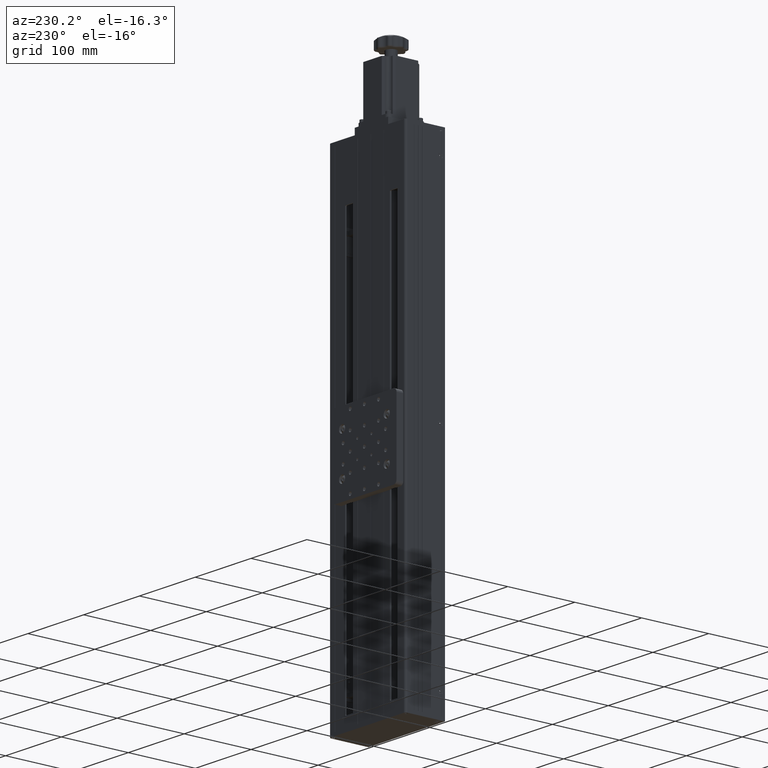
[diagram: clean part render]
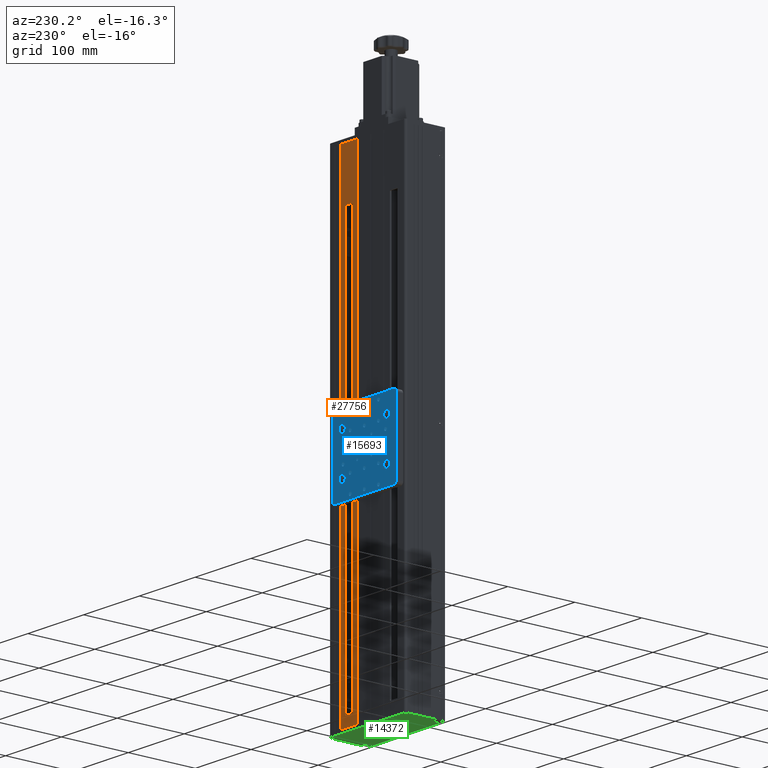
[diagram: same view with three faces highlighted in distinct colors, each labeled with its STEP entity id]
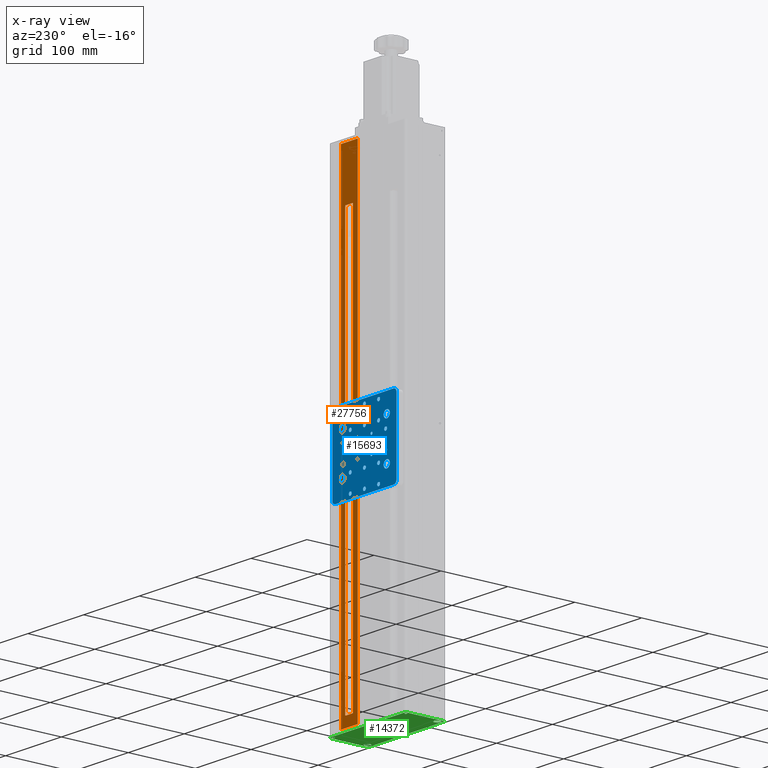
[diagram: x-ray of the same camera — body ghosted, the three highlighted faces saturated]
A machine part, auxiliary view with three faces highlighted in distinct colors.
The next image is the same camera in x-ray (body ghosted, the three faces saturated) — at least one of them is partly hidden behind the body in this view.
Their STEP definitions:

[orange] entity #27756 — the highlighted planar face has unit normal (0, 1, 0).
#1957 = CARTESIAN_POINT ( 'NONE',  ( -89.23569268325130100, 33.82987360368544900, -583.8342676332765700 ) ) ;
#1987 = CARTESIAN_POINT ( 'NONE',  ( -81.73569268325130100, 33.82987360368544900, -598.8342676332768000 ) ) ;
#2483 = DIRECTION ( 'NONE',  ( -1.000000000000000000, -0.0000000000000000000, -0.0000000000000000000 ) ) ;
#2873 = VECTOR ( 'NONE', #2948, 1000.000000000000000 ) ;
#2948 = DIRECTION ( 'NONE',  ( 0.0000000000000000000, 0.0000000000000000000, 1.000000000000000000 ) ) ;
#2968 = LINE ( 'NONE', #5899, #19000 ) ;
#3626 = DIRECTION ( 'NONE',  ( 0.0000000000000000000, 0.0000000000000000000, 1.000000000000000000 ) ) ;
#3670 = VERTEX_POINT ( 'NONE', #27080 ) ;
#4199 = EDGE_CURVE ( 'NONE', #19395, #12038, #40666, .T. ) ;
#4924 = CARTESIAN_POINT ( 'NONE',  ( -90.73569268325130100, 33.82987360368544900, -582.3342676332766800 ) ) ;
#5153 = DIRECTION ( 'NONE',  ( 1.137523590804463700E-017, -0.0000000000000000000, -1.000000000000000000 ) ) ;
#5502 = DIRECTION ( 'NONE',  ( -0.0000000000000000000, -1.000000000000000000, -0.0000000000000000000 ) ) ;
#5564 = CARTESIAN_POINT ( 'NONE',  ( -103.2356926832512900, 33.82987360368544900, -583.8342676332765700 ) ) ;
#5568 = DIRECTION ( 'NONE',  ( 1.000000000000000000, 0.0000000000000000000, 0.0000000000000000000 ) ) ;
#5899 = CARTESIAN_POINT ( 'NONE',  ( -103.2356926832512900, 33.82987360368544900, 26.16573236672331500 ) ) ;
#6321 = VERTEX_POINT ( 'NONE', #31454 ) ;
#6579 = VECTOR ( 'NONE', #15196, 1000.000000000000000 ) ;
#6641 = LINE ( 'NONE', #1957, #22654 ) ;
#6756 = ORIENTED_EDGE ( 'NONE', *, *, #7686, .F. ) ;
#7686 = EDGE_CURVE ( 'NONE', #12131, #30647, #31908, .T. ) ;
#7713 = CARTESIAN_POINT ( 'NONE',  ( -89.23569268325130100, 33.82987360368544900, -582.3342676332766800 ) ) ;
#8133 = DIRECTION ( 'NONE',  ( 0.0000000000000000000, 0.0000000000000000000, 1.000000000000000000 ) ) ;
#8361 = DIRECTION ( 'NONE',  ( -0.0000000000000000000, -1.000000000000000000, -0.0000000000000000000 ) ) ;
#10336 = ORIENTED_EDGE ( 'NONE', *, *, #33538, .T. ) ;
#10399 = LINE ( 'NONE', #41241, #2873 ) ;
#10636 = EDGE_CURVE ( 'NONE', #3670, #22361, #32169, .T. ) ;
#10766 = ORIENTED_EDGE ( 'NONE', *, *, #32980, .T. ) ;
#11023 = VERTEX_POINT ( 'NONE', #22456 ) ;
#11614 = CIRCLE ( 'NONE', #22563, 1.499999999999945800 ) ;
#12038 = VERTEX_POINT ( 'NONE', #35072 ) ;
#12081 = CARTESIAN_POINT ( 'NONE',  ( -101.7356926832512900, 33.82987360368544900, 26.16573236672331500 ) ) ;
#12131 = VERTEX_POINT ( 'NONE', #32411 ) ;
#12958 = CARTESIAN_POINT ( 'NONE',  ( -89.23569268325130100, 33.82987360368544900, 24.66573236672336800 ) ) ;
#14626 = CARTESIAN_POINT ( 'NONE',  ( -81.73569268325130100, 33.82987360368544900, 101.1657323667232800 ) ) ;
#14631 = VECTOR ( 'NONE', #2483, 1000.000000000000000 ) ;
#15163 = VECTOR ( 'NONE', #5568, 1000.000000000000000 ) ;
#15196 = DIRECTION ( 'NONE',  ( -0.0000000000000000000, -0.0000000000000000000, -1.000000000000000000 ) ) ;
#15270 = CARTESIAN_POINT ( 'NONE',  ( -103.2356926832512900, 33.82987360368544900, -582.3342676332766800 ) ) ;
#15408 = DIRECTION ( 'NONE',  ( 1.000000000000000000, 0.0000000000000000000, 0.0000000000000000000 ) ) ;
#15863 = EDGE_LOOP ( 'NONE', ( #6756, #23073, #23916, #28999 ) ) ;
#15885 = CARTESIAN_POINT ( 'NONE',  ( -111.7356926832513000, 33.82987360368544900, 101.1657323667232800 ) ) ;
#16149 = DIRECTION ( 'NONE',  ( 0.0000000000000000000, 1.000000000000000000, 0.0000000000000000000 ) ) ;
#16835 = ORIENTED_EDGE ( 'NONE', *, *, #4199, .T. ) ;
#18130 = FACE_BOUND ( 'NONE', #23712, .T. ) ;
#18881 = CARTESIAN_POINT ( 'NONE',  ( -111.7356926832513000, 33.82987360368544900, -598.8342676332768000 ) ) ;
#19000 = VECTOR ( 'NONE', #15408, 1000.000000000000000 ) ;
#19226 = PLANE ( 'NONE',  #20772 ) ;
#19395 = VERTEX_POINT ( 'NONE', #12081 ) ;
#19614 = EDGE_CURVE ( 'NONE', #22361, #30647, #38361, .T. ) ;
#20026 = CIRCLE ( 'NONE', #29488, 1.499999999999945800 ) ;
#20128 = AXIS2_PLACEMENT_3D ( 'NONE', #41364, #40952, #3626 ) ;
#20772 = AXIS2_PLACEMENT_3D ( 'NONE', #35284, #16149, #38529 ) ;
#21700 = VERTEX_POINT ( 'NONE', #7713 ) ;
#22111 = CIRCLE ( 'NONE', #39593, 1.500000000000001300 ) ;
#22361 = VERTEX_POINT ( 'NONE', #14626 ) ;
#22456 = CARTESIAN_POINT ( 'NONE',  ( -90.73569268325130100, 33.82987360368544900, -583.8342676332765700 ) ) ;
#22563 = AXIS2_PLACEMENT_3D ( 'NONE', #4924, #27272, #8133 ) ;
#22654 = VECTOR ( 'NONE', #5153, 1000.000000000000000 ) ;
#22954 = CARTESIAN_POINT ( 'NONE',  ( -81.73569268325130100, 33.82987360368544900, 101.1657323667232800 ) ) ;
#23073 = ORIENTED_EDGE ( 'NONE', *, *, #33058, .F. ) ;
#23144 = LINE ( 'NONE', #5564, #14631 ) ;
#23426 = VECTOR ( 'NONE', #24884, 1000.000000000000000 ) ;
#23712 = EDGE_LOOP ( 'NONE', ( #34984, #10336, #34367, #40755, #39891, #10766, #27412, #16835 ) ) ;
#23916 = ORIENTED_EDGE ( 'NONE', *, *, #10636, .T. ) ;
#24659 = CARTESIAN_POINT ( 'NONE',  ( -101.7356926832512900, 33.82987360368544900, -582.3342676332766800 ) ) ;
#24884 = DIRECTION ( 'NONE',  ( 1.000000000000000000, 0.0000000000000000000, 0.0000000000000000000 ) ) ;
#25104 = VERTEX_POINT ( 'NONE', #15270 ) ;
#25184 = EDGE_CURVE ( 'NONE', #19395, #36902, #2968, .T. ) ;
#26164 = DIRECTION ( 'NONE',  ( -0.0000000000000000000, -0.0000000000000000000, -1.000000000000000000 ) ) ;
#26613 = FACE_OUTER_BOUND ( 'NONE', #15863, .T. ) ;
#27080 = CARTESIAN_POINT ( 'NONE',  ( -111.7356926832513000, 33.82987360368544900, 101.1657323667232800 ) ) ;
#27272 = DIRECTION ( 'NONE',  ( -0.0000000000000000000, -1.000000000000000000, -0.0000000000000000000 ) ) ;
#27412 = ORIENTED_EDGE ( 'NONE', *, *, #25184, .F. ) ;
#27500 = CARTESIAN_POINT ( 'NONE',  ( -90.73569268325130100, 33.82987360368544900, 24.66573236672336800 ) ) ;
#27756 = ADVANCED_FACE ( 'NONE', ( #18130, #26613 ), #19226, .T. ) ;
#27862 = DIRECTION ( 'NONE',  ( 0.0000000000000000000, 0.0000000000000000000, 1.000000000000000000 ) ) ;
#28999 = ORIENTED_EDGE ( 'NONE', *, *, #19614, .T. ) ;
#29488 = AXIS2_PLACEMENT_3D ( 'NONE', #24659, #5502, #27862 ) ;
#29784 = EDGE_CURVE ( 'NONE', #11023, #21700, #11614, .T. ) ;
#30647 = VERTEX_POINT ( 'NONE', #1987 ) ;
#30720 = DIRECTION ( 'NONE',  ( 0.0000000000000000000, 0.0000000000000000000, 1.000000000000000000 ) ) ;
#30841 = CARTESIAN_POINT ( 'NONE',  ( -90.73569268325130100, 33.82987360368544900, 26.16573236672331500 ) ) ;
#31094 = LINE ( 'NONE', #34343, #6579 ) ;
#31454 = CARTESIAN_POINT ( 'NONE',  ( -101.7356926832512900, 33.82987360368544900, -583.8342676332765700 ) ) ;
#31908 = LINE ( 'NONE', #18881, #23426 ) ;
#32169 = LINE ( 'NONE', #15885, #15163 ) ;
#32411 = CARTESIAN_POINT ( 'NONE',  ( -111.7356926832513000, 33.82987360368544900, -598.8342676332768000 ) ) ;
#32416 = EDGE_CURVE ( 'NONE', #25104, #12038, #10399, .T. ) ;
#32980 = EDGE_CURVE ( 'NONE', #38645, #36902, #22111, .T. ) ;
#33058 = EDGE_CURVE ( 'NONE', #3670, #12131, #31094, .T. ) ;
#33538 = EDGE_CURVE ( 'NONE', #25104, #6321, #20026, .T. ) ;
#34343 = CARTESIAN_POINT ( 'NONE',  ( -111.7356926832513000, 33.82987360368544900, 101.1657323667232800 ) ) ;
#34367 = ORIENTED_EDGE ( 'NONE', *, *, #36223, .F. ) ;
#34984 = ORIENTED_EDGE ( 'NONE', *, *, #32416, .F. ) ;
#35072 = CARTESIAN_POINT ( 'NONE',  ( -103.2356926832512900, 33.82987360368544900, 24.66573236672336800 ) ) ;
#35284 = CARTESIAN_POINT ( 'NONE',  ( -111.7356926832513000, 33.82987360368544900, 101.1657323667232800 ) ) ;
#36166 = EDGE_CURVE ( 'NONE', #38645, #21700, #6641, .T. ) ;
#36223 = EDGE_CURVE ( 'NONE', #11023, #6321, #23144, .T. ) ;
#36902 = VERTEX_POINT ( 'NONE', #30841 ) ;
#37366 = VECTOR ( 'NONE', #26164, 1000.000000000000000 ) ;
#38361 = LINE ( 'NONE', #22954, #37366 ) ;
#38529 = DIRECTION ( 'NONE',  ( 0.0000000000000000000, -0.0000000000000000000, 1.000000000000000000 ) ) ;
#38645 = VERTEX_POINT ( 'NONE', #12958 ) ;
#39593 = AXIS2_PLACEMENT_3D ( 'NONE', #27500, #8361, #30720 ) ;
#39891 = ORIENTED_EDGE ( 'NONE', *, *, #36166, .F. ) ;
#40666 = CIRCLE ( 'NONE', #20128, 1.500000000000001300 ) ;
#40755 = ORIENTED_EDGE ( 'NONE', *, *, #29784, .T. ) ;
#40952 = DIRECTION ( 'NONE',  ( -0.0000000000000000000, -1.000000000000000000, -0.0000000000000000000 ) ) ;
#41241 = CARTESIAN_POINT ( 'NONE',  ( -103.2356926832512900, 33.82987360368544900, -583.8342676332765700 ) ) ;
#41364 = CARTESIAN_POINT ( 'NONE',  ( -101.7356926832512900, 33.82987360368544900, 24.66573236672331500 ) ) ;

[blue] entity #15693 — the highlighted planar face has unit normal (-0, -1, -0).
#3 = EDGE_CURVE ( 'NONE', #5846, #8318, #11600, .T. ) ;
#48 = CARTESIAN_POINT ( 'NONE',  ( -83.73569268325151400, 44.32987360368547100, -331.8342676332768500 ) ) ;
#165 = EDGE_LOOP ( 'NONE', ( #3760, #28397 ) ) ;
#168 = CIRCLE ( 'NONE', #26840, 2.552699999999963300 ) ;
#240 = ORIENTED_EDGE ( 'NONE', *, *, #26617, .F. ) ;
#354 = VERTEX_POINT ( 'NONE', #34026 ) ;
#405 = ORIENTED_EDGE ( 'NONE', *, *, #16936, .F. ) ;
#417 = EDGE_CURVE ( 'NONE', #20052, #29961, #40046, .T. ) ;
#458 = VECTOR ( 'NONE', #28625, 1000.000000000000000 ) ;
#538 = CARTESIAN_POINT ( 'NONE',  ( -136.2356926832513000, 44.32987360368546300, -276.8869676332767000 ) ) ;
#549 = FACE_BOUND ( 'NONE', #30832, .T. ) ;
#556 = VERTEX_POINT ( 'NONE', #13316 ) ;
#605 = CIRCLE ( 'NONE', #21753, 2.552700000000018800 ) ;
#813 = EDGE_LOOP ( 'NONE', ( #7284, #16964 ) ) ;
#860 = CARTESIAN_POINT ( 'NONE',  ( -176.2356926832513900, 44.32987360368548500, -304.3342676332765100 ) ) ;
#953 = DIRECTION ( 'NONE',  ( 2.428612866367542300E-016, 1.000000000000000000, 4.370394399051937600E-016 ) ) ;
#1010 = EDGE_CURVE ( 'NONE', #1158, #34301, #12969, .T. ) ;
#1158 = VERTEX_POINT ( 'NONE', #20459 ) ;
#1349 = CARTESIAN_POINT ( 'NONE',  ( -98.13569268325130700, 44.32987360368546300, -261.6342676332768100 ) ) ;
#1381 = VERTEX_POINT ( 'NONE', #35940 ) ;
#1423 = AXIS2_PLACEMENT_3D ( 'NONE', #27237, #8098, #30487 ) ;
#1445 = CARTESIAN_POINT ( 'NONE',  ( -98.13569268325129300, 44.32987360368546300, -259.0815676332768500 ) ) ;
#1460 = CARTESIAN_POINT ( 'NONE',  ( -136.2356926832514100, 44.32987360368547100, -299.7342676332766600 ) ) ;
#1470 = EDGE_CURVE ( 'NONE', #28222, #16397, #20874, .T. ) ;
#1521 = DIRECTION ( 'NONE',  ( 5.436513420227349600E-015, 0.0000000000000000000, 1.000000000000000000 ) ) ;
#1536 = AXIS2_PLACEMENT_3D ( 'NONE', #9047, #31394, #12268 ) ;
#1551 = DIRECTION ( 'NONE',  ( 5.436513420227349600E-015, 0.0000000000000000000, 1.000000000000000000 ) ) ;
#1567 = FACE_BOUND ( 'NONE', #35507, .T. ) ;
#1701 = DIRECTION ( 'NONE',  ( 0.0000000000000000000, 0.0000000000000000000, 1.000000000000000000 ) ) ;
#1751 = DIRECTION ( 'NONE',  ( 0.0000000000000000000, 0.0000000000000000000, 1.000000000000000000 ) ) ;
#1824 = DIRECTION ( 'NONE',  ( 5.436513420227408700E-015, 0.0000000000000000000, 1.000000000000000000 ) ) ;
#2103 = ORIENTED_EDGE ( 'NONE', *, *, #24112, .F. ) ;
#2166 = DIRECTION ( 'NONE',  ( -2.428612866367542300E-016, -1.000000000000000000, -4.370394399051937600E-016 ) ) ;
#2185 = EDGE_LOOP ( 'NONE', ( #22232, #21910 ) ) ;
#2311 = DIRECTION ( 'NONE',  ( 2.428612866367542300E-016, 1.000000000000000000, 4.370394399051937600E-016 ) ) ;
#2334 = EDGE_CURVE ( 'NONE', #4707, #27017, #32384, .T. ) ;
#2360 = VERTEX_POINT ( 'NONE', #32391 ) ;
#2400 = CARTESIAN_POINT ( 'NONE',  ( -161.6356926832511400, 44.32987360368544200, -220.9815676332765400 ) ) ;
#2432 = EDGE_CURVE ( 'NONE', #16177, #32915, #27360, .T. ) ;
#2509 = DIRECTION ( 'NONE',  ( 2.428612866367542300E-016, 1.000000000000000000, 4.370394399051937600E-016 ) ) ;
#2536 = FACE_BOUND ( 'NONE', #7142, .T. ) ;
#2590 = CARTESIAN_POINT ( 'NONE',  ( -123.5356926832510300, 44.32987360368547100, -261.6342676332766900 ) ) ;
#2727 = ORIENTED_EDGE ( 'NONE', *, *, #23379, .F. ) ;
#2781 = ORIENTED_EDGE ( 'NONE', *, *, #19255, .F. ) ;
#2795 = VERTEX_POINT ( 'NONE', #28560 ) ;
#3072 = VECTOR ( 'NONE', #23232, 1000.000000000000000 ) ;
#3121 = CIRCLE ( 'NONE', #37598, 2.552699999999963300 ) ;
#3209 = CARTESIAN_POINT ( 'NONE',  ( -161.6356926832512200, 44.32987360368544200, -248.9342676332765300 ) ) ;
#3241 = AXIS2_PLACEMENT_3D ( 'NONE', #18055, #40400, #21235 ) ;
#3333 = CARTESIAN_POINT ( 'NONE',  ( -161.6356926832511400, 44.32987360368544200, -226.0869676332765200 ) ) ;
#3502 = CARTESIAN_POINT ( 'NONE',  ( -78.73569268325117300, 44.32987360368542800, -221.8342676332768000 ) ) ;
#3507 = CARTESIAN_POINT ( 'NONE',  ( -136.2356926832512200, 44.32987360368544200, -251.4869676332766100 ) ) ;
#3545 = VERTEX_POINT ( 'NONE', #31731 ) ;
#3556 = FACE_BOUND ( 'NONE', #31780, .T. ) ;
#3651 = CARTESIAN_POINT ( 'NONE',  ( -96.23569268325140100, 44.32987360368547100, -298.8342676332768000 ) ) ;
#3760 = ORIENTED_EDGE ( 'NONE', *, *, #37984, .F. ) ;
#3763 = DIRECTION ( 'NONE',  ( -1.387778780781444400E-014, 0.0000000000000000000, -1.000000000000000000 ) ) ;
#3806 = ORIENTED_EDGE ( 'NONE', *, *, #22793, .F. ) ;
#3810 = DIRECTION ( 'NONE',  ( 2.428612866367542300E-016, 1.000000000000000000, 4.370394399051937600E-016 ) ) ;
#3818 = ORIENTED_EDGE ( 'NONE', *, *, #36430, .F. ) ;
#3967 = CARTESIAN_POINT ( 'NONE',  ( -174.3356926832513500, 44.32987360368547100, -261.6342676332765800 ) ) ;
#3996 = DIRECTION ( 'NONE',  ( 0.0000000000000000000, 0.0000000000000000000, 1.000000000000000000 ) ) ;
#4026 = EDGE_LOOP ( 'NONE', ( #36633, #240 ) ) ;
#4331 = CIRCLE ( 'NONE', #36286, 5.000000000000004400 ) ;
#4393 = ORIENTED_EDGE ( 'NONE', *, *, #4490, .F. ) ;
#4490 = EDGE_CURVE ( 'NONE', #34654, #21666, #7618, .T. ) ;
#4582 = DIRECTION ( 'NONE',  ( 5.436513420227467100E-015, 0.0000000000000000000, 1.000000000000000000 ) ) ;
#4653 = DIRECTION ( 'NONE',  ( -2.987133673899396500E-015, 4.370394399051945000E-016, -1.000000000000000000 ) ) ;
#4668 = CIRCLE ( 'NONE', #33877, 5.500000000000005300 ) ;
#4673 = DIRECTION ( 'NONE',  ( 0.0000000000000000000, 0.0000000000000000000, 1.000000000000000000 ) ) ;
#4707 = VERTEX_POINT ( 'NONE', #24958 ) ;
#4808 = ORIENTED_EDGE ( 'NONE', *, *, #40385, .F. ) ;
#4950 = VERTEX_POINT ( 'NONE', #22469 ) ;
#5024 = CARTESIAN_POINT ( 'NONE',  ( -193.7356926832511900, 44.32987360368544200, -216.8342676332764500 ) ) ;
#5085 = CIRCLE ( 'NONE', #41407, 2.552700000000018800 ) ;
#5105 = CARTESIAN_POINT ( 'NONE',  ( -174.3356926832513800, 44.32987360368547800, -287.0342676332765600 ) ) ;
#5245 = CARTESIAN_POINT ( 'NONE',  ( -123.5356926832513800, 44.32987360368546300, -287.0342676332767300 ) ) ;
#5272 = ORIENTED_EDGE ( 'NONE', *, *, #22326, .T. ) ;
#5560 = VERTEX_POINT ( 'NONE', #17765 ) ;
#5607 = CARTESIAN_POINT ( 'NONE',  ( -161.6356926832514200, 44.32987360368547100, -297.1815676332765900 ) ) ;
#5718 = VERTEX_POINT ( 'NONE', #16194 ) ;
#5722 = CARTESIAN_POINT ( 'NONE',  ( -136.2356926832514100, 44.32987360368547100, -302.2869676332766700 ) ) ;
#5803 = DIRECTION ( 'NONE',  ( 0.0000000000000000000, 0.0000000000000000000, 1.000000000000000000 ) ) ;
#5820 = AXIS2_PLACEMENT_3D ( 'NONE', #30206, #14274, #1551 ) ;
#5846 = VERTEX_POINT ( 'NONE', #36178 ) ;
#6419 = DIRECTION ( 'NONE',  ( 0.0000000000000000000, 0.0000000000000000000, 1.000000000000000000 ) ) ;
#6627 = CARTESIAN_POINT ( 'NONE',  ( -78.93569268325134700, 44.32987360368544900, -274.2342676332768300 ) ) ;
#6703 = CIRCLE ( 'NONE', #8228, 2.552700000000018800 ) ;
#6719 = EDGE_CURVE ( 'NONE', #13933, #39027, #8562, .T. ) ;
#6989 = EDGE_LOOP ( 'NONE', ( #22178, #14403 ) ) ;
#6997 = CIRCLE ( 'NONE', #15961, 2.552699999999963300 ) ;
#7142 = EDGE_LOOP ( 'NONE', ( #37816, #20633 ) ) ;
#7227 = AXIS2_PLACEMENT_3D ( 'NONE', #12620, #34977, #15824 ) ;
#7284 = ORIENTED_EDGE ( 'NONE', *, *, #10387, .F. ) ;
#7337 = VERTEX_POINT ( 'NONE', #37212 ) ;
#7396 = VERTEX_POINT ( 'NONE', #13694 ) ;
#7495 = AXIS2_PLACEMENT_3D ( 'NONE', #12814, #35174, #16040 ) ;
#7598 = DIRECTION ( 'NONE',  ( 2.428612866367542300E-016, 1.000000000000000000, 4.370394399051937600E-016 ) ) ;
#7618 = CIRCLE ( 'NONE', #38624, 2.552699999999963300 ) ;
#7665 = VERTEX_POINT ( 'NONE', #26320 ) ;
#7717 = DIRECTION ( 'NONE',  ( 2.428612866367542300E-016, 1.000000000000000000, 4.370394399051937600E-016 ) ) ;
#7858 = CARTESIAN_POINT ( 'NONE',  ( -78.73569268325117300, 44.32987360368540700, -216.8342676332768000 ) ) ;
#7862 = EDGE_LOOP ( 'NONE', ( #10861, #35032, #34379, #17026, #5272, #31875, #25303, #14313, #20378, #30088, #9011, #12933 ) ) ;
#7958 = EDGE_CURVE ( 'NONE', #10851, #2360, #20370, .T. ) ;
#8057 = FACE_BOUND ( 'NONE', #10292, .T. ) ;
#8097 = CIRCLE ( 'NONE', #1536, 2.552700000000018800 ) ;
#8098 = DIRECTION ( 'NONE',  ( 2.428612866367542300E-016, 1.000000000000000000, 4.370394399051937600E-016 ) ) ;
#8187 = EDGE_CURVE ( 'NONE', #33352, #40886, #15504, .T. ) ;
#8228 = AXIS2_PLACEMENT_3D ( 'NONE', #1460, #23829, #4673 ) ;
#8318 = VERTEX_POINT ( 'NONE', #6627 ) ;
#8356 = CIRCLE ( 'NONE', #13803, 2.552699999999990900 ) ;
#8417 = CARTESIAN_POINT ( 'NONE',  ( -98.13569268325136400, 44.32987360368545600, -287.0342676332767800 ) ) ;
#8480 = EDGE_LOOP ( 'NONE', ( #20372, #22692 ) ) ;
#8482 = DIRECTION ( 'NONE',  ( 0.0000000000000000000, 0.0000000000000000000, 1.000000000000000000 ) ) ;
#8489 = PLANE ( 'NONE',  #8712 ) ;
#8562 = LINE ( 'NONE', #18387, #16061 ) ;
#8635 = CIRCLE ( 'NONE', #37386, 1.727199999999984300 ) ;
#8695 = ORIENTED_EDGE ( 'NONE', *, *, #37352, .F. ) ;
#8712 = AXIS2_PLACEMENT_3D ( 'NONE', #21326, #2166, #24555 ) ;
#8781 = CIRCLE ( 'NONE', #25171, 2.552699999999963300 ) ;
#8825 = AXIS2_PLACEMENT_3D ( 'NONE', #23164, #23203, #23260 ) ;
#8878 = CARTESIAN_POINT ( 'NONE',  ( -136.2356926832514100, 44.32987360368547100, -299.7342676332766600 ) ) ;
#8887 = ORIENTED_EDGE ( 'NONE', *, *, #17253, .F. ) ;
#8978 = LINE ( 'NONE', #23293, #458 ) ;
#9011 = ORIENTED_EDGE ( 'NONE', *, *, #16078, .T. ) ;
#9047 = CARTESIAN_POINT ( 'NONE',  ( -161.6356926832514200, 44.32987360368547100, -299.7342676332766000 ) ) ;
#9071 = FACE_BOUND ( 'NONE', #14382, .T. ) ;
#9098 = EDGE_CURVE ( 'NONE', #14322, #39211, #28395, .T. ) ;
#9108 = CARTESIAN_POINT ( 'NONE',  ( -78.93569268325134700, 44.32987360368544900, -274.4342676332768200 ) ) ;
#9214 = CARTESIAN_POINT ( 'NONE',  ( -110.8356926832514900, 44.32987360368547800, -325.1342676332766400 ) ) ;
#9350 = ORIENTED_EDGE ( 'NONE', *, *, #25220, .F. ) ;
#9377 = VERTEX_POINT ( 'NONE', #29975 ) ;
#9487 = EDGE_CURVE ( 'NONE', #26399, #12431, #20389, .T. ) ;
#9518 = EDGE_LOOP ( 'NONE', ( #3806, #9350 ) ) ;
#9542 = DIRECTION ( 'NONE',  ( 2.428612866367542300E-016, 1.000000000000000000, 4.370394399051937600E-016 ) ) ;
#9573 = EDGE_CURVE ( 'NONE', #12431, #26399, #39878, .T. ) ;
#9682 = CIRCLE ( 'NONE', #21999, 2.552700000000018800 ) ;
#9766 = EDGE_CURVE ( 'NONE', #10548, #41400, #34323, .T. ) ;
#9804 = EDGE_CURVE ( 'NONE', #354, #35626, #17342, .T. ) ;
#9870 = CIRCLE ( 'NONE', #23152, 2.552699999999990900 ) ;
#10046 = CARTESIAN_POINT ( 'NONE',  ( -188.7356926832515300, 44.32987360368548500, -326.8342676332765100 ) ) ;
#10047 = DIRECTION ( 'NONE',  ( 2.428612866367542300E-016, 1.000000000000000000, 4.370394399051937600E-016 ) ) ;
#10071 = FACE_BOUND ( 'NONE', #22855, .T. ) ;
#10095 = DIRECTION ( 'NONE',  ( 2.428612866367542300E-016, 1.000000000000000000, 4.370394399051937600E-016 ) ) ;
#10122 = DIRECTION ( 'NONE',  ( 0.0000000000000000000, 0.0000000000000000000, -1.000000000000000000 ) ) ;
#10272 = ORIENTED_EDGE ( 'NONE', *, *, #19720, .F. ) ;
#10281 = DIRECTION ( 'NONE',  ( 2.428612866367542300E-016, 1.000000000000000000, 4.370394399051937600E-016 ) ) ;
#10292 = EDGE_LOOP ( 'NONE', ( #14858, #29738 ) ) ;
#10313 = CARTESIAN_POINT ( 'NONE',  ( -174.3356926832513800, 44.32987360368547800, -287.0342676332765600 ) ) ;
#10318 = CIRCLE ( 'NONE', #16778, 1.727199999999984300 ) ;
#10334 = DIRECTION ( 'NONE',  ( 2.523234146875353300E-015, 0.0000000000000000000, 1.000000000000000000 ) ) ;
#10387 = EDGE_CURVE ( 'NONE', #16387, #39651, #30723, .T. ) ;
#10411 = CIRCLE ( 'NONE', #24573, 2.552700000000018800 ) ;
#10454 = DIRECTION ( 'NONE',  ( 2.428612866367542300E-016, 1.000000000000000000, 4.370394399051937600E-016 ) ) ;
#10548 = VERTEX_POINT ( 'NONE', #36948 ) ;
#10715 = CARTESIAN_POINT ( 'NONE',  ( -110.8356926832515100, 44.32987360368547800, -327.6869676332766500 ) ) ;
#10800 = CIRCLE ( 'NONE', #3241, 5.500000000000005300 ) ;
#10851 = VERTEX_POINT ( 'NONE', #21108 ) ;
#10854 = CIRCLE ( 'NONE', #20834, 2.552700000000018800 ) ;
#10861 = ORIENTED_EDGE ( 'NONE', *, *, #3, .F. ) ;
#10869 = ORIENTED_EDGE ( 'NONE', *, *, #28692, .F. ) ;
#11089 = FACE_OUTER_BOUND ( 'NONE', #7862, .T. ) ;
#11335 = DIRECTION ( 'NONE',  ( 0.0000000000000000000, 0.0000000000000000000, 1.000000000000000000 ) ) ;
#11348 = CARTESIAN_POINT ( 'NONE',  ( -110.8356926832514800, 44.32987360368547800, -322.5815676332766200 ) ) ;
#11387 = CARTESIAN_POINT ( 'NONE',  ( -174.3356926832513500, 44.32987360368547100, -259.0815676332766200 ) ) ;
#11394 = CARTESIAN_POINT ( 'NONE',  ( -83.73569268325117300, 44.32987360368541400, -216.8342676332768000 ) ) ;
#11399 = ORIENTED_EDGE ( 'NONE', *, *, #14433, .F. ) ;
#11402 = EDGE_CURVE ( 'NONE', #34063, #15839, #37080, .T. ) ;
#11492 = EDGE_LOOP ( 'NONE', ( #38544, #35131 ) ) ;
#11518 = CARTESIAN_POINT ( 'NONE',  ( -96.23569268325125800, 44.32987360368545600, -249.8342676332767400 ) ) ;
#11521 = DIRECTION ( 'NONE',  ( 2.428612866367542300E-016, 1.000000000000000000, 4.370394399051937600E-016 ) ) ;
#11567 = DIRECTION ( 'NONE',  ( 5.436513420227408700E-015, 0.0000000000000000000, 1.000000000000000000 ) ) ;
#11600 = LINE ( 'NONE', #21788, #3072 ) ;
#11625 = DIRECTION ( 'NONE',  ( 5.436513420227467100E-015, 0.0000000000000000000, 1.000000000000000000 ) ) ;
#11639 = CARTESIAN_POINT ( 'NONE',  ( -110.8356926832512000, 44.32987360368543500, -223.5342676332767300 ) ) ;
#11687 = DIRECTION ( 'NONE',  ( 0.0000000000000000000, 0.0000000000000000000, 1.000000000000000000 ) ) ;
#11842 = EDGE_CURVE ( 'NONE', #8318, #40930, #8978, .T. ) ;
#11878 = CARTESIAN_POINT ( 'NONE',  ( -96.23569268325141500, 44.32987360368547100, -304.3342676332768000 ) ) ;
#12044 = EDGE_CURVE ( 'NONE', #16397, #28222, #24459, .T. ) ;
#12086 = FACE_BOUND ( 'NONE', #16247, .T. ) ;
#12117 = DIRECTION ( 'NONE',  ( 0.0000000000000000000, 0.0000000000000000000, 1.000000000000000000 ) ) ;
#12254 = DIRECTION ( 'NONE',  ( 2.428612866367542300E-016, 1.000000000000000000, 4.370394399051937600E-016 ) ) ;
#12268 = DIRECTION ( 'NONE',  ( 0.0000000000000000000, 0.0000000000000000000, 1.000000000000000000 ) ) ;
#12431 = VERTEX_POINT ( 'NONE', #17364 ) ;
#12448 = DIRECTION ( 'NONE',  ( 5.436513420227349600E-015, 0.0000000000000000000, 1.000000000000000000 ) ) ;
#12615 = VECTOR ( 'NONE', #4653, 1000.000000000000000 ) ;
#12620 = CARTESIAN_POINT ( 'NONE',  ( -110.8356926832512500, 44.32987360368544200, -248.9342676332767600 ) ) ;
#12633 = AXIS2_PLACEMENT_3D ( 'NONE', #33148, #14017, #36373 ) ;
#12737 = CARTESIAN_POINT ( 'NONE',  ( -136.2356926832511300, 44.32987360368544200, -223.5342676332766100 ) ) ;
#12814 = CARTESIAN_POINT ( 'NONE',  ( -161.6356926832514200, 44.32987360368547100, -299.7342676332766000 ) ) ;
#12850 = VERTEX_POINT ( 'NONE', #19945 ) ;
#12903 = DIRECTION ( 'NONE',  ( 0.0000000000000000000, 0.0000000000000000000, 1.000000000000000000 ) ) ;
#12933 = ORIENTED_EDGE ( 'NONE', *, *, #11842, .F. ) ;
#12966 = EDGE_CURVE ( 'NONE', #556, #27740, #35321, .T. ) ;
#12969 = CIRCLE ( 'NONE', #27979, 5.000000000000004400 ) ;
#12987 = DIRECTION ( 'NONE',  ( 2.428612866367542300E-016, 1.000000000000000000, 4.370394399051937600E-016 ) ) ;
#13316 = CARTESIAN_POINT ( 'NONE',  ( -176.2356926832513600, 44.32987360368548500, -298.8342676332765100 ) ) ;
#13388 = ORIENTED_EDGE ( 'NONE', *, *, #36991, .F. ) ;
#13403 = DIRECTION ( 'NONE',  ( 2.428612866367542300E-016, 1.000000000000000000, 4.370394399051937600E-016 ) ) ;
#13493 = DIRECTION ( 'NONE',  ( 0.0000000000000000000, 0.0000000000000000000, 1.000000000000000000 ) ) ;
#13515 = DIRECTION ( 'NONE',  ( 2.428612866367542300E-016, 1.000000000000000000, 4.370394399051937600E-016 ) ) ;
#13549 = DIRECTION ( 'NONE',  ( 0.0000000000000000000, 0.0000000000000000000, 1.000000000000000000 ) ) ;
#13550 = EDGE_CURVE ( 'NONE', #14379, #2795, #9682, .T. ) ;
#13625 = DIRECTION ( 'NONE',  ( 2.428612866367542300E-016, 1.000000000000000000, 4.370394399051937600E-016 ) ) ;
#13694 = CARTESIAN_POINT ( 'NONE',  ( -123.5356926832513800, 44.32987360368546300, -288.7614676332767100 ) ) ;
#13794 = EDGE_CURVE ( 'NONE', #21666, #34654, #168, .T. ) ;
#13803 = AXIS2_PLACEMENT_3D ( 'NONE', #21474, #2311, #24699 ) ;
#13919 = VERTEX_POINT ( 'NONE', #11518 ) ;
#13933 = VERTEX_POINT ( 'NONE', #11394 ) ;
#13960 = CARTESIAN_POINT ( 'NONE',  ( -98.13569268325130700, 44.32987360368546300, -261.6342676332768100 ) ) ;
#14017 = DIRECTION ( 'NONE',  ( 2.428612866367542300E-016, 1.000000000000000000, 4.370394399051937600E-016 ) ) ;
#14027 = VECTOR ( 'NONE', #29576, 1000.000000000000000 ) ;
#14161 = CARTESIAN_POINT ( 'NONE',  ( -136.2356926832513000, 44.32987360368546300, -274.3342676332766800 ) ) ;
#14274 = DIRECTION ( 'NONE',  ( 2.428612866367542300E-016, 1.000000000000000000, 4.370394399051937600E-016 ) ) ;
#14313 = ORIENTED_EDGE ( 'NONE', *, *, #26723, .T. ) ;
#14322 = VERTEX_POINT ( 'NONE', #14558 ) ;
#14356 = DIRECTION ( 'NONE',  ( 2.428612866367542300E-016, 1.000000000000000000, 4.370394399051937600E-016 ) ) ;
#14376 = CARTESIAN_POINT ( 'NONE',  ( -110.8356926832512500, 44.32987360368544200, -248.9342676332767600 ) ) ;
#14379 = VERTEX_POINT ( 'NONE', #538 ) ;
#14382 = EDGE_LOOP ( 'NONE', ( #4808, #31840 ) ) ;
#14386 = EDGE_LOOP ( 'NONE', ( #36335, #10272 ) ) ;
#14403 = ORIENTED_EDGE ( 'NONE', *, *, #9487, .F. ) ;
#14405 = ORIENTED_EDGE ( 'NONE', *, *, #13794, .F. ) ;
#14433 = EDGE_CURVE ( 'NONE', #16613, #17184, #26597, .T. ) ;
#14558 = CARTESIAN_POINT ( 'NONE',  ( -176.2356926832512700, 44.32987360368545600, -249.8342676332765400 ) ) ;
#14793 = DIRECTION ( 'NONE',  ( -2.987133673899396500E-015, 4.370394399051945000E-016, -1.000000000000000000 ) ) ;
#14810 = ORIENTED_EDGE ( 'NONE', *, *, #31565, .F. ) ;
#14858 = ORIENTED_EDGE ( 'NONE', *, *, #30035, .F. ) ;
#14864 = DIRECTION ( 'NONE',  ( 2.428612866367542300E-016, 1.000000000000000000, 4.370394399051937600E-016 ) ) ;
#14992 = DIRECTION ( 'NONE',  ( 2.428612866367542300E-016, 1.000000000000000000, 4.370394399051937600E-016 ) ) ;
#15079 = DIRECTION ( 'NONE',  ( 2.523234146875353300E-015, 0.0000000000000000000, 1.000000000000000000 ) ) ;
#15232 = CARTESIAN_POINT ( 'NONE',  ( -148.9356926832513200, 44.32987360368547100, -287.0342676332765000 ) ) ;
#15504 = CIRCLE ( 'NONE', #5820, 2.552700000000018800 ) ;
#15544 = FACE_BOUND ( 'NONE', #29315, .T. ) ;
#15657 = DIRECTION ( 'NONE',  ( 1.000000000000000000, -2.428612866367529400E-016, -2.987133673899396500E-015 ) ) ;
#15693 = ADVANCED_FACE ( 'NONE', ( #37599, #20590, #3556, #12086, #30085, #36605, #28061, #19585, #11089, #2536, #35578, #27067, #18588, #10071, #1567, #34575, #26073, #17588, #9071, #549, #33590, #25065, #16573, #8057, #41049, #32565, #24076, #15544 ), #8489, .F. ) ;
#15751 = VERTEX_POINT ( 'NONE', #37569 ) ;
#15824 = DIRECTION ( 'NONE',  ( 5.436513420227408700E-015, 0.0000000000000000000, 1.000000000000000000 ) ) ;
#15839 = VERTEX_POINT ( 'NONE', #34743 ) ;
#15902 = VERTEX_POINT ( 'NONE', #31947 ) ;
#15961 = AXIS2_PLACEMENT_3D ( 'NONE', #1349, #23736, #4582 ) ;
#16040 = DIRECTION ( 'NONE',  ( 0.0000000000000000000, 0.0000000000000000000, 1.000000000000000000 ) ) ;
#16061 = VECTOR ( 'NONE', #20631, 1000.000000000000000 ) ;
#16078 = EDGE_CURVE ( 'NONE', #28403, #40930, #39518, .T. ) ;
#16177 = VERTEX_POINT ( 'NONE', #23826 ) ;
#16194 = CARTESIAN_POINT ( 'NONE',  ( -193.7356926832511300, 44.32987360368545600, -221.8342676332764500 ) ) ;
#16247 = EDGE_LOOP ( 'NONE', ( #2727, #34693 ) ) ;
#16314 = CIRCLE ( 'NONE', #12633, 5.500000000000005300 ) ;
#16387 = VERTEX_POINT ( 'NONE', #2400 ) ;
#16397 = VERTEX_POINT ( 'NONE', #31328 ) ;
#16452 = AXIS2_PLACEMENT_3D ( 'NONE', #40144, #20991, #1824 ) ;
#16540 = VERTEX_POINT ( 'NONE', #19195 ) ;
#16573 = FACE_BOUND ( 'NONE', #9518, .T. ) ;
#16613 = VERTEX_POINT ( 'NONE', #3651 ) ;
#16635 = DIRECTION ( 'NONE',  ( 0.0000000000000000000, 0.0000000000000000000, 1.000000000000000000 ) ) ;
#16686 = AXIS2_PLACEMENT_3D ( 'NONE', #3209, #25603, #6419 ) ;
#16699 = CARTESIAN_POINT ( 'NONE',  ( -78.73569268325117300, 44.32987360368540700, -216.8342676332768000 ) ) ;
#16778 = AXIS2_PLACEMENT_3D ( 'NONE', #15232, #37622, #18483 ) ;
#16834 = VERTEX_POINT ( 'NONE', #36778 ) ;
#16911 = EDGE_CURVE ( 'NONE', #21618, #4950, #22430, .T. ) ;
#16935 = CARTESIAN_POINT ( 'NONE',  ( -110.8356926832512700, 44.32987360368544200, -251.4869676332767800 ) ) ;
#16936 = EDGE_CURVE ( 'NONE', #17184, #16613, #26930, .T. ) ;
#16964 = ORIENTED_EDGE ( 'NONE', *, *, #30577, .F. ) ;
#17004 = VECTOR ( 'NONE', #17463, 1000.000000000000000 ) ;
#17026 = ORIENTED_EDGE ( 'NONE', *, *, #1010, .T. ) ;
#17029 = EDGE_CURVE ( 'NONE', #24284, #35128, #10411, .T. ) ;
#17036 = DIRECTION ( 'NONE',  ( 2.428612866367542300E-016, 1.000000000000000000, 4.370394399051937600E-016 ) ) ;
#17099 = CARTESIAN_POINT ( 'NONE',  ( -174.3356926832513500, 44.32987360368547100, -264.1869676332765400 ) ) ;
#17116 = DIRECTION ( 'NONE',  ( 0.0000000000000000000, 0.0000000000000000000, 1.000000000000000000 ) ) ;
#17159 = DIRECTION ( 'NONE',  ( 5.436513420227467100E-015, 0.0000000000000000000, 1.000000000000000000 ) ) ;
#17184 = VERTEX_POINT ( 'NONE', #32250 ) ;
#17253 = EDGE_CURVE ( 'NONE', #2360, #10851, #29384, .T. ) ;
#17336 = CARTESIAN_POINT ( 'NONE',  ( -136.2356926832514400, 44.32987360368548500, -325.1342676332766900 ) ) ;
#17342 = CIRCLE ( 'NONE', #27309, 2.552699999999990900 ) ;
#17364 = CARTESIAN_POINT ( 'NONE',  ( -136.2356926832512200, 44.32987360368544200, -246.3815676332766300 ) ) ;
#17410 = CARTESIAN_POINT ( 'NONE',  ( -78.73569268325134400, 44.32987360368544900, -274.4342676332768200 ) ) ;
#17417 = CARTESIAN_POINT ( 'NONE',  ( -110.8356926832513500, 44.32987360368545600, -274.3342676332766200 ) ) ;
#17436 = EDGE_CURVE ( 'NONE', #35128, #24284, #10854, .T. ) ;
#17463 = DIRECTION ( 'NONE',  ( -1.000000000000000000, 2.428612866367529400E-016, 2.987133673899396900E-015 ) ) ;
#17588 = FACE_BOUND ( 'NONE', #23025, .T. ) ;
#17615 = DIRECTION ( 'NONE',  ( 5.436513420227408700E-015, 0.0000000000000000000, 1.000000000000000000 ) ) ;
#17689 = AXIS2_PLACEMENT_3D ( 'NONE', #30268, #24582, #21087 ) ;
#17765 = CARTESIAN_POINT ( 'NONE',  ( -98.13569268325132100, 44.32987360368546300, -264.1869676332767700 ) ) ;
#17909 = DIRECTION ( 'NONE',  ( 2.428612866367542300E-016, 1.000000000000000000, 4.370394399051937600E-016 ) ) ;
#18049 = DIRECTION ( 'NONE',  ( 2.428612866367542300E-016, 1.000000000000000000, 4.370394399051937600E-016 ) ) ;
#18055 = CARTESIAN_POINT ( 'NONE',  ( -96.23569268325124400, 44.32987360368545600, -244.3342676332767400 ) ) ;
#18177 = ORIENTED_EDGE ( 'NONE', *, *, #18455, .F. ) ;
#18185 = CARTESIAN_POINT ( 'NONE',  ( -188.7356926832511600, 44.32987360368544200, -221.8342676332764500 ) ) ;
#18220 = AXIS2_PLACEMENT_3D ( 'NONE', #860, #9542, #35593 ) ;
#18387 = CARTESIAN_POINT ( 'NONE',  ( -78.73569268325117300, 44.32987360368540700, -216.8342676332768000 ) ) ;
#18455 = EDGE_CURVE ( 'NONE', #7396, #16834, #32006, .T. ) ;
#18483 = DIRECTION ( 'NONE',  ( 0.0000000000000000000, 0.0000000000000000000, 1.000000000000000000 ) ) ;
#18533 = CARTESIAN_POINT ( 'NONE',  ( -188.7356926832511600, 44.32987360368543500, -216.8342676332764500 ) ) ;
#18585 = AXIS2_PLACEMENT_3D ( 'NONE', #18185, #40533, #21365 ) ;
#18588 = FACE_BOUND ( 'NONE', #30132, .T. ) ;
#18593 = AXIS2_PLACEMENT_3D ( 'NONE', #17336, #17909, #33583 ) ;
#18691 = EDGE_CURVE ( 'NONE', #4950, #21618, #29504, .T. ) ;
#18896 = CARTESIAN_POINT ( 'NONE',  ( -123.5356926832510300, 44.32987360368547100, -259.9070676332767100 ) ) ;
#18955 = AXIS2_PLACEMENT_3D ( 'NONE', #2590, #24975, #5803 ) ;
#19016 = CIRCLE ( 'NONE', #27606, 2.552700000000018800 ) ;
#19195 = CARTESIAN_POINT ( 'NONE',  ( -110.8356926832513700, 44.32987360368545600, -276.8869676332766400 ) ) ;
#19206 = AXIS2_PLACEMENT_3D ( 'NONE', #34147, #14992, #37384 ) ;
#19255 = EDGE_CURVE ( 'NONE', #7337, #15902, #31399, .T. ) ;
#19303 = AXIS2_PLACEMENT_3D ( 'NONE', #26735, #7598, #29973 ) ;
#19424 = CIRCLE ( 'NONE', #19206, 2.552699999999990900 ) ;
#19585 = FACE_BOUND ( 'NONE', #165, .T. ) ;
#19720 = EDGE_CURVE ( 'NONE', #13919, #3545, #16314, .T. ) ;
#19857 = EDGE_CURVE ( 'NONE', #3545, #13919, #10800, .T. ) ;
#19945 = CARTESIAN_POINT ( 'NONE',  ( -161.6356926832514200, 44.32987360368547100, -302.2869676332766200 ) ) ;
#20046 = AXIS2_PLACEMENT_3D ( 'NONE', #10046, #10095, #10122 ) ;
#20052 = VERTEX_POINT ( 'NONE', #41484 ) ;
#20124 = CARTESIAN_POINT ( 'NONE',  ( -161.6356926832512200, 44.32987360368544200, -251.4869676332765500 ) ) ;
#20370 = CIRCLE ( 'NONE', #38249, 2.552699999999963300 ) ;
#20372 = ORIENTED_EDGE ( 'NONE', *, *, #22891, .F. ) ;
#20378 = ORIENTED_EDGE ( 'NONE', *, *, #6719, .F. ) ;
#20389 = CIRCLE ( 'NONE', #8825, 2.552699999999990900 ) ;
#20459 = CARTESIAN_POINT ( 'NONE',  ( -78.73569268325150000, 44.32987360368545600, -326.8342676332768500 ) ) ;
#20463 = CARTESIAN_POINT ( 'NONE',  ( -110.8356926832512100, 44.32987360368543500, -226.0869676332767100 ) ) ;
#20466 = DIRECTION ( 'NONE',  ( 2.428612866367542300E-016, 1.000000000000000000, 4.370394399051937600E-016 ) ) ;
#20565 = CIRCLE ( 'NONE', #30509, 2.552700000000018800 ) ;
#20590 = FACE_BOUND ( 'NONE', #813, .T. ) ;
#20607 = DIRECTION ( 'NONE',  ( 0.0000000000000000000, 0.0000000000000000000, 1.000000000000000000 ) ) ;
#20622 = DIRECTION ( 'NONE',  ( 5.436513420227349600E-015, 0.0000000000000000000, 1.000000000000000000 ) ) ;
#20631 = DIRECTION ( 'NONE',  ( -1.000000000000000000, 2.428612866367529400E-016, 2.987133673899396900E-015 ) ) ;
#20633 = ORIENTED_EDGE ( 'NONE', *, *, #35016, .F. ) ;
#20678 = DIRECTION ( 'NONE',  ( 2.428612866367542300E-016, 1.000000000000000000, 4.370394399051937600E-016 ) ) ;
#20792 = CARTESIAN_POINT ( 'NONE',  ( -78.73569268325152800, 44.32987360368547100, -331.8342676332768500 ) ) ;
#20822 = CIRCLE ( 'NONE', #18585, 5.000000000000004400 ) ;
#20834 = AXIS2_PLACEMENT_3D ( 'NONE', #33516, #14356, #36735 ) ;
#20859 = DIRECTION ( 'NONE',  ( 2.428612866367542300E-016, 1.000000000000000000, 4.370394399051937600E-016 ) ) ;
#20874 = CIRCLE ( 'NONE', #40607, 1.727199999999984300 ) ;
#20920 = ORIENTED_EDGE ( 'NONE', *, *, #27561, .F. ) ;
#20929 = DIRECTION ( 'NONE',  ( 2.428612866367542300E-016, 1.000000000000000000, 4.370394399051937600E-016 ) ) ;
#20991 = DIRECTION ( 'NONE',  ( 2.428612866367542300E-016, 1.000000000000000000, 4.370394399051937600E-016 ) ) ;
#21087 = DIRECTION ( 'NONE',  ( 5.046468293750706700E-015, 0.0000000000000000000, 1.000000000000000000 ) ) ;
#21108 = CARTESIAN_POINT ( 'NONE',  ( -174.3356926832513800, 44.32987360368547800, -289.5869676332765200 ) ) ;
#21235 = DIRECTION ( 'NONE',  ( 2.523234146875353300E-015, 0.0000000000000000000, 1.000000000000000000 ) ) ;
#21326 = CARTESIAN_POINT ( 'NONE',  ( -78.73569268325117300, 44.32987360368540700, -216.8342676332768000 ) ) ;
#21365 = DIRECTION ( 'NONE',  ( -5.551115123125778000E-015, 0.0000000000000000000, -1.000000000000000000 ) ) ;
#21474 = CARTESIAN_POINT ( 'NONE',  ( -136.2356926832511300, 44.32987360368544200, -223.5342676332766100 ) ) ;
#21618 = VERTEX_POINT ( 'NONE', #26042 ) ;
#21666 = VERTEX_POINT ( 'NONE', #17099 ) ;
#21671 = CARTESIAN_POINT ( 'NONE',  ( -136.2356926832513000, 44.32987360368546300, -274.3342676332766800 ) ) ;
#21685 = AXIS2_PLACEMENT_3D ( 'NONE', #25045, #20466, #20607 ) ;
#21753 = AXIS2_PLACEMENT_3D ( 'NONE', #21671, #2509, #24894 ) ;
#21788 = CARTESIAN_POINT ( 'NONE',  ( -78.93569268325134700, 44.32987360368544900, -274.2342676332768300 ) ) ;
#21803 = LINE ( 'NONE', #5024, #29349 ) ;
#21910 = ORIENTED_EDGE ( 'NONE', *, *, #16911, .F. ) ;
#21999 = AXIS2_PLACEMENT_3D ( 'NONE', #14161, #953, #12903 ) ;
#22105 = LINE ( 'NONE', #7858, #12615 ) ;
#22178 = ORIENTED_EDGE ( 'NONE', *, *, #9573, .F. ) ;
#22225 = DIRECTION ( 'NONE',  ( 0.0000000000000000000, 0.0000000000000000000, 1.000000000000000000 ) ) ;
#22232 = ORIENTED_EDGE ( 'NONE', *, *, #18691, .F. ) ;
#22326 = EDGE_CURVE ( 'NONE', #34301, #16177, #34991, .T. ) ;
#22401 = VECTOR ( 'NONE', #15657, 1000.000000000000000 ) ;
#22430 = CIRCLE ( 'NONE', #23230, 2.552700000000018800 ) ;
#22469 = CARTESIAN_POINT ( 'NONE',  ( -161.6356926832514500, 44.32987360368549200, -322.5815676332765600 ) ) ;
#22597 = AXIS2_PLACEMENT_3D ( 'NONE', #25629, #39097, #3996 ) ;
#22692 = ORIENTED_EDGE ( 'NONE', *, *, #9766, .F. ) ;
#22793 = EDGE_CURVE ( 'NONE', #7665, #32647, #9870, .T. ) ;
#22855 = EDGE_LOOP ( 'NONE', ( #2781, #10869 ) ) ;
#22891 = EDGE_CURVE ( 'NONE', #41400, #10548, #8356, .T. ) ;
#22967 = CARTESIAN_POINT ( 'NONE',  ( -176.2356926832512200, 44.32987360368545600, -238.8342676332765400 ) ) ;
#22982 = CARTESIAN_POINT ( 'NONE',  ( -83.73569268325117300, 44.32987360368542800, -221.8342676332768000 ) ) ;
#23025 = EDGE_LOOP ( 'NONE', ( #30369, #33376 ) ) ;
#23051 = AXIS2_PLACEMENT_3D ( 'NONE', #12737, #12254, #11687 ) ;
#23152 = AXIS2_PLACEMENT_3D ( 'NONE', #14376, #36751, #17615 ) ;
#23164 = CARTESIAN_POINT ( 'NONE',  ( -136.2356926832512200, 44.32987360368544200, -248.9342676332766200 ) ) ;
#23203 = DIRECTION ( 'NONE',  ( 2.428612866367542300E-016, 1.000000000000000000, 4.370394399051937600E-016 ) ) ;
#23230 = AXIS2_PLACEMENT_3D ( 'NONE', #37202, #18049, #40395 ) ;
#23232 = DIRECTION ( 'NONE',  ( 2.987133673899396500E-015, -4.370394399051945000E-016, 1.000000000000000000 ) ) ;
#23260 = DIRECTION ( 'NONE',  ( 0.0000000000000000000, 0.0000000000000000000, 1.000000000000000000 ) ) ;
#23293 = CARTESIAN_POINT ( 'NONE',  ( -78.93569268325134700, 44.32987360368544900, -274.2342676332768300 ) ) ;
#23379 = EDGE_CURVE ( 'NONE', #27017, #4707, #32257, .T. ) ;
#23406 = ORIENTED_EDGE ( 'NONE', *, *, #24767, .F. ) ;
#23514 = CARTESIAN_POINT ( 'NONE',  ( -110.8356926832513800, 44.32987360368547100, -297.1815676332766400 ) ) ;
#23637 = ORIENTED_EDGE ( 'NONE', *, *, #9804, .F. ) ;
#23736 = DIRECTION ( 'NONE',  ( 2.428612866367542300E-016, 1.000000000000000000, 4.370394399051937600E-016 ) ) ;
#23826 = CARTESIAN_POINT ( 'NONE',  ( -188.7356926832514700, 44.32987360368549900, -331.8342676332765100 ) ) ;
#23829 = DIRECTION ( 'NONE',  ( 2.428612866367542300E-016, 1.000000000000000000, 4.370394399051937600E-016 ) ) ;
#24076 = FACE_BOUND ( 'NONE', #35951, .T. ) ;
#24112 = EDGE_CURVE ( 'NONE', #12850, #28224, #8097, .T. ) ;
#24149 = AXIS2_PLACEMENT_3D ( 'NONE', #39944, #12987, #11335 ) ;
#24284 = VERTEX_POINT ( 'NONE', #10715 ) ;
#24356 = ORIENTED_EDGE ( 'NONE', *, *, #9098, .F. ) ;
#24459 = CIRCLE ( 'NONE', #31176, 1.727199999999984300 ) ;
#24494 = CARTESIAN_POINT ( 'NONE',  ( -136.2356926832514100, 44.32987360368547100, -297.1815676332766400 ) ) ;
#24555 = DIRECTION ( 'NONE',  ( -2.987133673899396500E-015, 4.370394399051945000E-016, -1.000000000000000000 ) ) ;
#24573 = AXIS2_PLACEMENT_3D ( 'NONE', #9214, #31576, #12448 ) ;
#24582 = DIRECTION ( 'NONE',  ( 2.428612866367542300E-016, 1.000000000000000000, 4.370394399051937600E-016 ) ) ;
#24699 = DIRECTION ( 'NONE',  ( 0.0000000000000000000, 0.0000000000000000000, 1.000000000000000000 ) ) ;
#24767 = EDGE_CURVE ( 'NONE', #15839, #34063, #20565, .T. ) ;
#24894 = DIRECTION ( 'NONE',  ( 0.0000000000000000000, 0.0000000000000000000, 1.000000000000000000 ) ) ;
#24958 = CARTESIAN_POINT ( 'NONE',  ( -161.6356926832512800, 44.32987360368547100, -276.8869676332765800 ) ) ;
#24964 = AXIS2_PLACEMENT_3D ( 'NONE', #17417, #39767, #20622 ) ;
#24975 = DIRECTION ( 'NONE',  ( 2.428612866367542300E-016, 1.000000000000000000, 4.370394399051937600E-016 ) ) ;
#25045 = CARTESIAN_POINT ( 'NONE',  ( -136.2356926832512200, 44.32987360368544200, -248.9342676332766200 ) ) ;
#25065 = FACE_BOUND ( 'NONE', #26431, .T. ) ;
#25171 = AXIS2_PLACEMENT_3D ( 'NONE', #13960, #36311, #17159 ) ;
#25220 = EDGE_CURVE ( 'NONE', #32647, #7665, #31981, .T. ) ;
#25303 = ORIENTED_EDGE ( 'NONE', *, *, #26686, .F. ) ;
#25492 = ORIENTED_EDGE ( 'NONE', *, *, #417, .F. ) ;
#25603 = DIRECTION ( 'NONE',  ( 2.428612866367542300E-016, 1.000000000000000000, 4.370394399051937600E-016 ) ) ;
#25629 = CARTESIAN_POINT ( 'NONE',  ( -123.5356926832510300, 44.32987360368547100, -261.6342676332766900 ) ) ;
#25650 = DIRECTION ( 'NONE',  ( 0.0000000000000000000, 0.0000000000000000000, 1.000000000000000000 ) ) ;
#25850 = CARTESIAN_POINT ( 'NONE',  ( -148.9356926832512900, 44.32987360368547100, -261.6342676332765200 ) ) ;
#26002 = EDGE_CURVE ( 'NONE', #40886, #33352, #19016, .T. ) ;
#26041 = DIRECTION ( 'NONE',  ( 2.428612866367542300E-016, 1.000000000000000000, 4.370394399051937600E-016 ) ) ;
#26042 = CARTESIAN_POINT ( 'NONE',  ( -161.6356926832514500, 44.32987360368549200, -327.6869676332765900 ) ) ;
#26073 = FACE_BOUND ( 'NONE', #39926, .T. ) ;
#26131 = DIRECTION ( 'NONE',  ( 0.0000000000000000000, 0.0000000000000000000, 1.000000000000000000 ) ) ;
#26190 = DIRECTION ( 'NONE',  ( -2.775557561562889000E-015, 0.0000000000000000000, -1.000000000000000000 ) ) ;
#26320 = CARTESIAN_POINT ( 'NONE',  ( -110.8356926832512400, 44.32987360368544200, -246.3815676332767700 ) ) ;
#26399 = VERTEX_POINT ( 'NONE', #3507 ) ;
#26431 = EDGE_LOOP ( 'NONE', ( #3818, #8695 ) ) ;
#26534 = ORIENTED_EDGE ( 'NONE', *, *, #1470, .F. ) ;
#26597 = CIRCLE ( 'NONE', #34364, 5.500000000000005300 ) ;
#26617 = EDGE_CURVE ( 'NONE', #1381, #40178, #37869, .T. ) ;
#26686 = EDGE_CURVE ( 'NONE', #5718, #32915, #21803, .T. ) ;
#26723 = EDGE_CURVE ( 'NONE', #5718, #39027, #20822, .T. ) ;
#26735 = CARTESIAN_POINT ( 'NONE',  ( -148.9356926832513200, 44.32987360368547100, -287.0342676332765000 ) ) ;
#26834 = CARTESIAN_POINT ( 'NONE',  ( -148.9356926832512900, 44.32987360368547100, -261.6342676332765200 ) ) ;
#26840 = AXIS2_PLACEMENT_3D ( 'NONE', #3967, #33309, #13493 ) ;
#26843 = CARTESIAN_POINT ( 'NONE',  ( -78.73569268325134400, 44.32987360368544900, -274.2342676332768300 ) ) ;
#26859 = CARTESIAN_POINT ( 'NONE',  ( -176.2356926832513900, 44.32987360368548500, -304.3342676332765100 ) ) ;
#26930 = CIRCLE ( 'NONE', #38245, 5.500000000000005300 ) ;
#27017 = VERTEX_POINT ( 'NONE', #32960 ) ;
#27067 = FACE_BOUND ( 'NONE', #14386, .T. ) ;
#27100 = CARTESIAN_POINT ( 'NONE',  ( -193.7356926832515300, 44.32987360368548500, -326.8342676332765100 ) ) ;
#27237 = CARTESIAN_POINT ( 'NONE',  ( -98.13569268325136400, 44.32987360368545600, -287.0342676332767800 ) ) ;
#27254 = EDGE_CURVE ( 'NONE', #38046, #29865, #38214, .T. ) ;
#27309 = AXIS2_PLACEMENT_3D ( 'NONE', #11639, #11521, #11567 ) ;
#27360 = CIRCLE ( 'NONE', #20046, 5.000000000000004400 ) ;
#27400 = EDGE_CURVE ( 'NONE', #39211, #14322, #4668, .T. ) ;
#27561 = EDGE_CURVE ( 'NONE', #16834, #7396, #8635, .T. ) ;
#27565 = CIRCLE ( 'NONE', #7495, 2.552700000000018800 ) ;
#27603 = DIRECTION ( 'NONE',  ( 2.428612866367542300E-016, 1.000000000000000000, 4.370394399051937600E-016 ) ) ;
#27606 = AXIS2_PLACEMENT_3D ( 'NONE', #39817, #20678, #1521 ) ;
#27740 = VERTEX_POINT ( 'NONE', #31798 ) ;
#27837 = CARTESIAN_POINT ( 'NONE',  ( -148.9356926832512900, 44.32987360368547100, -263.3614676332765000 ) ) ;
#27979 = AXIS2_PLACEMENT_3D ( 'NONE', #38010, #10454, #3763 ) ;
#28053 = AXIS2_PLACEMENT_3D ( 'NONE', #10313, #32668, #13549 ) ;
#28061 = FACE_BOUND ( 'NONE', #6989, .T. ) ;
#28222 = VERTEX_POINT ( 'NONE', #27837 ) ;
#28224 = VERTEX_POINT ( 'NONE', #5607 ) ;
#28370 = ORIENTED_EDGE ( 'NONE', *, *, #11402, .F. ) ;
#28395 = CIRCLE ( 'NONE', #17689, 5.500000000000005300 ) ;
#28397 = ORIENTED_EDGE ( 'NONE', *, *, #13550, .F. ) ;
#28403 = VERTEX_POINT ( 'NONE', #3502 ) ;
#28535 = CARTESIAN_POINT ( 'NONE',  ( -174.3356926832513500, 44.32987360368547100, -261.6342676332765800 ) ) ;
#28560 = CARTESIAN_POINT ( 'NONE',  ( -136.2356926832513000, 44.32987360368546300, -271.7815676332766700 ) ) ;
#28625 = DIRECTION ( 'NONE',  ( 1.000000000000000000, -2.428612866367529400E-016, -2.987133673899396500E-015 ) ) ;
#28662 = DIRECTION ( 'NONE',  ( 2.428612866367542300E-016, 1.000000000000000000, 4.370394399051937600E-016 ) ) ;
#28692 = EDGE_CURVE ( 'NONE', #15902, #7337, #10318, .T. ) ;
#29213 = EDGE_CURVE ( 'NONE', #35635, #5560, #8781, .T. ) ;
#29227 = CARTESIAN_POINT ( 'NONE',  ( -110.8356926832513500, 44.32987360368545600, -274.3342676332766200 ) ) ;
#29315 = EDGE_LOOP ( 'NONE', ( #8887, #31871 ) ) ;
#29349 = VECTOR ( 'NONE', #14793, 1000.000000000000000 ) ;
#29384 = CIRCLE ( 'NONE', #28053, 2.552699999999963300 ) ;
#29504 = CIRCLE ( 'NONE', #34560, 2.552700000000018800 ) ;
#29576 = DIRECTION ( 'NONE',  ( -2.987133673899396500E-015, 4.370394399051945000E-016, -1.000000000000000000 ) ) ;
#29738 = ORIENTED_EDGE ( 'NONE', *, *, #32255, .F. ) ;
#29751 = EDGE_CURVE ( 'NONE', #40397, #1158, #22105, .T. ) ;
#29865 = VERTEX_POINT ( 'NONE', #24494 ) ;
#29961 = VERTEX_POINT ( 'NONE', #18896 ) ;
#29973 = DIRECTION ( 'NONE',  ( 0.0000000000000000000, 0.0000000000000000000, 1.000000000000000000 ) ) ;
#29975 = CARTESIAN_POINT ( 'NONE',  ( -161.6356926832512200, 44.32987360368544200, -246.3815676332765500 ) ) ;
#30009 = CIRCLE ( 'NONE', #18955, 1.727199999999984300 ) ;
#30035 = EDGE_CURVE ( 'NONE', #9377, #36689, #34072, .T. ) ;
#30082 = DIRECTION ( 'NONE',  ( 5.046468293750706700E-015, 0.0000000000000000000, 1.000000000000000000 ) ) ;
#30085 = FACE_BOUND ( 'NONE', #32858, .T. ) ;
#30088 = ORIENTED_EDGE ( 'NONE', *, *, #35513, .T. ) ;
#30128 = EDGE_LOOP ( 'NONE', ( #13388, #25492 ) ) ;
#30132 = EDGE_LOOP ( 'NONE', ( #11399, #405 ) ) ;
#30206 = CARTESIAN_POINT ( 'NONE',  ( -110.8356926832513900, 44.32987360368547100, -299.7342676332766600 ) ) ;
#30208 = ORIENTED_EDGE ( 'NONE', *, *, #27400, .F. ) ;
#30268 = CARTESIAN_POINT ( 'NONE',  ( -176.2356926832512400, 44.32987360368545600, -244.3342676332765400 ) ) ;
#30369 = ORIENTED_EDGE ( 'NONE', *, *, #17436, .F. ) ;
#30487 = DIRECTION ( 'NONE',  ( 5.436513420227467100E-015, 0.0000000000000000000, 1.000000000000000000 ) ) ;
#30509 = AXIS2_PLACEMENT_3D ( 'NONE', #32743, #13625, #35969 ) ;
#30577 = EDGE_CURVE ( 'NONE', #39651, #16387, #40464, .T. ) ;
#30700 = CARTESIAN_POINT ( 'NONE',  ( -136.2356926832514400, 44.32987360368548500, -322.5815676332766800 ) ) ;
#30723 = CIRCLE ( 'NONE', #24149, 2.552699999999990900 ) ;
#30766 = DIRECTION ( 'NONE',  ( 2.428612866367542300E-016, 1.000000000000000000, 4.370394399051937600E-016 ) ) ;
#30808 = EDGE_CURVE ( 'NONE', #5846, #40397, #31901, .T. ) ;
#30832 = EDGE_LOOP ( 'NONE', ( #28370, #23406 ) ) ;
#31176 = AXIS2_PLACEMENT_3D ( 'NONE', #25850, #26041, #26131 ) ;
#31231 = DIRECTION ( 'NONE',  ( 2.428612866367542300E-016, 1.000000000000000000, 4.370394399051937600E-016 ) ) ;
#31328 = CARTESIAN_POINT ( 'NONE',  ( -148.9356926832512900, 44.32987360368547100, -259.9070676332765400 ) ) ;
#31394 = DIRECTION ( 'NONE',  ( 2.428612866367542300E-016, 1.000000000000000000, 4.370394399051937600E-016 ) ) ;
#31399 = CIRCLE ( 'NONE', #19303, 1.727199999999984300 ) ;
#31565 = EDGE_CURVE ( 'NONE', #5560, #35635, #6997, .T. ) ;
#31576 = DIRECTION ( 'NONE',  ( 2.428612866367542300E-016, 1.000000000000000000, 4.370394399051937600E-016 ) ) ;
#31731 = CARTESIAN_POINT ( 'NONE',  ( -96.23569268325123000, 44.32987360368545600, -238.8342676332767400 ) ) ;
#31780 = EDGE_LOOP ( 'NONE', ( #23637, #35122 ) ) ;
#31798 = CARTESIAN_POINT ( 'NONE',  ( -176.2356926832514100, 44.32987360368548500, -309.8342676332765100 ) ) ;
#31840 = ORIENTED_EDGE ( 'NONE', *, *, #27254, .F. ) ;
#31871 = ORIENTED_EDGE ( 'NONE', *, *, #7958, .F. ) ;
#31875 = ORIENTED_EDGE ( 'NONE', *, *, #2432, .T. ) ;
#31901 = LINE ( 'NONE', #9108, #22401 ) ;
#31947 = CARTESIAN_POINT ( 'NONE',  ( -148.9356926832513200, 44.32987360368547100, -288.7614676332764800 ) ) ;
#31981 = CIRCLE ( 'NONE', #7227, 2.552699999999990900 ) ;
#32006 = CIRCLE ( 'NONE', #37517, 1.727199999999984300 ) ;
#32250 = CARTESIAN_POINT ( 'NONE',  ( -96.23569268325142900, 44.32987360368547100, -309.8342676332768000 ) ) ;
#32255 = EDGE_CURVE ( 'NONE', #36689, #9377, #19424, .T. ) ;
#32257 = CIRCLE ( 'NONE', #41380, 2.552700000000018800 ) ;
#32384 = CIRCLE ( 'NONE', #37994, 2.552700000000018800 ) ;
#32391 = CARTESIAN_POINT ( 'NONE',  ( -174.3356926832513800, 44.32987360368547800, -284.4815676332766000 ) ) ;
#32392 = DIRECTION ( 'NONE',  ( 5.436513420227349600E-015, 0.0000000000000000000, 1.000000000000000000 ) ) ;
#32530 = CARTESIAN_POINT ( 'NONE',  ( -123.5356926832513800, 44.32987360368546300, -287.0342676332767300 ) ) ;
#32565 = FACE_BOUND ( 'NONE', #4026, .T. ) ;
#32632 = CARTESIAN_POINT ( 'NONE',  ( -176.2356926832512400, 44.32987360368545600, -244.3342676332765400 ) ) ;
#32647 = VERTEX_POINT ( 'NONE', #16935 ) ;
#32668 = DIRECTION ( 'NONE',  ( 2.428612866367542300E-016, 1.000000000000000000, 4.370394399051937600E-016 ) ) ;
#32743 = CARTESIAN_POINT ( 'NONE',  ( -136.2356926832514400, 44.32987360368548500, -325.1342676332766900 ) ) ;
#32795 = CARTESIAN_POINT ( 'NONE',  ( -110.8356926832514100, 44.32987360368547100, -302.2869676332766700 ) ) ;
#32858 = EDGE_LOOP ( 'NONE', ( #35881, #2103 ) ) ;
#32915 = VERTEX_POINT ( 'NONE', #27100 ) ;
#32960 = CARTESIAN_POINT ( 'NONE',  ( -161.6356926832512800, 44.32987360368547100, -271.7815676332765500 ) ) ;
#33148 = CARTESIAN_POINT ( 'NONE',  ( -96.23569268325124400, 44.32987360368545600, -244.3342676332767400 ) ) ;
#33181 = EDGE_CURVE ( 'NONE', #28224, #12850, #27565, .T. ) ;
#33309 = DIRECTION ( 'NONE',  ( 2.428612866367542300E-016, 1.000000000000000000, 4.370394399051937600E-016 ) ) ;
#33352 = VERTEX_POINT ( 'NONE', #32795 ) ;
#33376 = ORIENTED_EDGE ( 'NONE', *, *, #17029, .F. ) ;
#33441 = CIRCLE ( 'NONE', #16452, 2.552699999999990900 ) ;
#33516 = CARTESIAN_POINT ( 'NONE',  ( -110.8356926832514900, 44.32987360368547800, -325.1342676332766400 ) ) ;
#33583 = DIRECTION ( 'NONE',  ( 0.0000000000000000000, 0.0000000000000000000, 1.000000000000000000 ) ) ;
#33590 = FACE_BOUND ( 'NONE', #11492, .T. ) ;
#33877 = AXIS2_PLACEMENT_3D ( 'NONE', #32632, #13515, #35858 ) ;
#34023 = CARTESIAN_POINT ( 'NONE',  ( -161.6356926832512800, 44.32987360368547100, -274.3342676332765700 ) ) ;
#34026 = CARTESIAN_POINT ( 'NONE',  ( -110.8356926832511800, 44.32987360368543500, -220.9815676332767400 ) ) ;
#34063 = VERTEX_POINT ( 'NONE', #30700 ) ;
#34072 = CIRCLE ( 'NONE', #16686, 2.552699999999990900 ) ;
#34147 = CARTESIAN_POINT ( 'NONE',  ( -161.6356926832512200, 44.32987360368544200, -248.9342676332765300 ) ) ;
#34225 = DIRECTION ( 'NONE',  ( 2.428612866367542300E-016, 1.000000000000000000, 4.370394399051937600E-016 ) ) ;
#34301 = VERTEX_POINT ( 'NONE', #48 ) ;
#34323 = CIRCLE ( 'NONE', #23051, 2.552699999999990900 ) ;
#34364 = AXIS2_PLACEMENT_3D ( 'NONE', #36440, #10281, #10334 ) ;
#34379 = ORIENTED_EDGE ( 'NONE', *, *, #29751, .T. ) ;
#34560 = AXIS2_PLACEMENT_3D ( 'NONE', #40069, #20929, #1751 ) ;
#34575 = FACE_BOUND ( 'NONE', #30128, .T. ) ;
#34647 = CARTESIAN_POINT ( 'NONE',  ( -161.6356926832512800, 44.32987360368547100, -274.3342676332765700 ) ) ;
#34654 = VERTEX_POINT ( 'NONE', #11387 ) ;
#34693 = ORIENTED_EDGE ( 'NONE', *, *, #2334, .F. ) ;
#34743 = CARTESIAN_POINT ( 'NONE',  ( -136.2356926832514400, 44.32987360368548500, -327.6869676332767100 ) ) ;
#34977 = DIRECTION ( 'NONE',  ( 2.428612866367542300E-016, 1.000000000000000000, 4.370394399051937600E-016 ) ) ;
#34991 = LINE ( 'NONE', #20792, #17004 ) ;
#35016 = EDGE_CURVE ( 'NONE', #27740, #556, #38887, .T. ) ;
#35032 = ORIENTED_EDGE ( 'NONE', *, *, #30808, .T. ) ;
#35122 = ORIENTED_EDGE ( 'NONE', *, *, #35133, .F. ) ;
#35128 = VERTEX_POINT ( 'NONE', #11348 ) ;
#35131 = ORIENTED_EDGE ( 'NONE', *, *, #8187, .F. ) ;
#35133 = EDGE_CURVE ( 'NONE', #35626, #354, #33441, .T. ) ;
#35174 = DIRECTION ( 'NONE',  ( 2.428612866367542300E-016, 1.000000000000000000, 4.370394399051937600E-016 ) ) ;
#35272 = DIRECTION ( 'NONE',  ( 2.428612866367542300E-016, 1.000000000000000000, 4.370394399051937600E-016 ) ) ;
#35321 = CIRCLE ( 'NONE', #18220, 5.500000000000005300 ) ;
#35507 = EDGE_LOOP ( 'NONE', ( #36722, #26534 ) ) ;
#35513 = EDGE_CURVE ( 'NONE', #13933, #28403, #4331, .T. ) ;
#35578 = FACE_BOUND ( 'NONE', #36404, .T. ) ;
#35593 = DIRECTION ( 'NONE',  ( 5.046468293750706700E-015, 0.0000000000000000000, 1.000000000000000000 ) ) ;
#35626 = VERTEX_POINT ( 'NONE', #20463 ) ;
#35635 = VERTEX_POINT ( 'NONE', #1445 ) ;
#35744 = DIRECTION ( 'NONE',  ( 0.0000000000000000000, 0.0000000000000000000, 1.000000000000000000 ) ) ;
#35754 = CARTESIAN_POINT ( 'NONE',  ( -136.2356926832511300, 44.32987360368544200, -220.9815676332766300 ) ) ;
#35858 = DIRECTION ( 'NONE',  ( 5.046468293750706700E-015, 0.0000000000000000000, 1.000000000000000000 ) ) ;
#35881 = ORIENTED_EDGE ( 'NONE', *, *, #33181, .F. ) ;
#35940 = CARTESIAN_POINT ( 'NONE',  ( -98.13569268325137800, 44.32987360368545600, -289.5869676332767400 ) ) ;
#35951 = EDGE_LOOP ( 'NONE', ( #40122, #14810 ) ) ;
#35969 = DIRECTION ( 'NONE',  ( 0.0000000000000000000, 0.0000000000000000000, 1.000000000000000000 ) ) ;
#36178 = CARTESIAN_POINT ( 'NONE',  ( -78.93569268325134700, 44.32987360368544900, -274.4342676332768200 ) ) ;
#36286 = AXIS2_PLACEMENT_3D ( 'NONE', #22982, #3810, #26190 ) ;
#36311 = DIRECTION ( 'NONE',  ( 2.428612866367542300E-016, 1.000000000000000000, 4.370394399051937600E-016 ) ) ;
#36335 = ORIENTED_EDGE ( 'NONE', *, *, #19857, .F. ) ;
#36373 = DIRECTION ( 'NONE',  ( 2.523234146875353300E-015, 0.0000000000000000000, 1.000000000000000000 ) ) ;
#36404 = EDGE_LOOP ( 'NONE', ( #30208, #24356 ) ) ;
#36430 = EDGE_CURVE ( 'NONE', #15751, #16540, #5085, .T. ) ;
#36440 = CARTESIAN_POINT ( 'NONE',  ( -96.23569268325141500, 44.32987360368547100, -304.3342676332768000 ) ) ;
#36605 = FACE_BOUND ( 'NONE', #2185, .T. ) ;
#36633 = ORIENTED_EDGE ( 'NONE', *, *, #37873, .F. ) ;
#36689 = VERTEX_POINT ( 'NONE', #20124 ) ;
#36722 = ORIENTED_EDGE ( 'NONE', *, *, #12044, .F. ) ;
#36735 = DIRECTION ( 'NONE',  ( 5.436513420227349600E-015, 0.0000000000000000000, 1.000000000000000000 ) ) ;
#36751 = DIRECTION ( 'NONE',  ( 2.428612866367542300E-016, 1.000000000000000000, 4.370394399051937600E-016 ) ) ;
#36778 = CARTESIAN_POINT ( 'NONE',  ( -123.5356926832513800, 44.32987360368546300, -285.3070676332767400 ) ) ;
#36948 = CARTESIAN_POINT ( 'NONE',  ( -136.2356926832511300, 44.32987360368544200, -226.0869676332766000 ) ) ;
#36991 = EDGE_CURVE ( 'NONE', #29961, #20052, #30009, .T. ) ;
#37080 = CIRCLE ( 'NONE', #18593, 2.552700000000018800 ) ;
#37113 = AXIS2_PLACEMENT_3D ( 'NONE', #40026, #20859, #1701 ) ;
#37202 = CARTESIAN_POINT ( 'NONE',  ( -161.6356926832514500, 44.32987360368549200, -325.1342676332765800 ) ) ;
#37212 = CARTESIAN_POINT ( 'NONE',  ( -148.9356926832513200, 44.32987360368547100, -285.3070676332765200 ) ) ;
#37250 = DIRECTION ( 'NONE',  ( 0.0000000000000000000, 0.0000000000000000000, 1.000000000000000000 ) ) ;
#37352 = EDGE_CURVE ( 'NONE', #16540, #15751, #38207, .T. ) ;
#37384 = DIRECTION ( 'NONE',  ( 0.0000000000000000000, 0.0000000000000000000, 1.000000000000000000 ) ) ;
#37386 = AXIS2_PLACEMENT_3D ( 'NONE', #5245, #27603, #8482 ) ;
#37517 = AXIS2_PLACEMENT_3D ( 'NONE', #32530, #13403, #35744 ) ;
#37569 = CARTESIAN_POINT ( 'NONE',  ( -110.8356926832513400, 44.32987360368545600, -271.7815676332766100 ) ) ;
#37598 = AXIS2_PLACEMENT_3D ( 'NONE', #8417, #30766, #11625 ) ;
#37599 = FACE_BOUND ( 'NONE', #37810, .T. ) ;
#37622 = DIRECTION ( 'NONE',  ( 2.428612866367542300E-016, 1.000000000000000000, 4.370394399051937600E-016 ) ) ;
#37810 = EDGE_LOOP ( 'NONE', ( #4393, #14405 ) ) ;
#37816 = ORIENTED_EDGE ( 'NONE', *, *, #12966, .F. ) ;
#37869 = CIRCLE ( 'NONE', #1423, 2.552699999999963300 ) ;
#37873 = EDGE_CURVE ( 'NONE', #40178, #1381, #3121, .T. ) ;
#37984 = EDGE_CURVE ( 'NONE', #2795, #14379, #605, .T. ) ;
#37994 = AXIS2_PLACEMENT_3D ( 'NONE', #34647, #17036, #17116 ) ;
#38010 = CARTESIAN_POINT ( 'NONE',  ( -83.73569268325151400, 44.32987360368547100, -326.8342676332768500 ) ) ;
#38046 = VERTEX_POINT ( 'NONE', #5722 ) ;
#38207 = CIRCLE ( 'NONE', #24964, 2.552700000000018800 ) ;
#38214 = CIRCLE ( 'NONE', #41077, 2.552700000000018800 ) ;
#38245 = AXIS2_PLACEMENT_3D ( 'NONE', #11878, #34225, #15079 ) ;
#38249 = AXIS2_PLACEMENT_3D ( 'NONE', #5105, #35272, #25650 ) ;
#38538 = CARTESIAN_POINT ( 'NONE',  ( -98.13569268325134900, 44.32987360368545600, -284.4815676332768200 ) ) ;
#38544 = ORIENTED_EDGE ( 'NONE', *, *, #26002, .F. ) ;
#38624 = AXIS2_PLACEMENT_3D ( 'NONE', #28535, #28662, #16635 ) ;
#38887 = CIRCLE ( 'NONE', #40793, 5.500000000000005300 ) ;
#39027 = VERTEX_POINT ( 'NONE', #18533 ) ;
#39097 = DIRECTION ( 'NONE',  ( 2.428612866367542300E-016, 1.000000000000000000, 4.370394399051937600E-016 ) ) ;
#39211 = VERTEX_POINT ( 'NONE', #22967 ) ;
#39518 = LINE ( 'NONE', #16699, #14027 ) ;
#39651 = VERTEX_POINT ( 'NONE', #3333 ) ;
#39767 = DIRECTION ( 'NONE',  ( 2.428612866367542300E-016, 1.000000000000000000, 4.370394399051937600E-016 ) ) ;
#39817 = CARTESIAN_POINT ( 'NONE',  ( -110.8356926832513900, 44.32987360368547100, -299.7342676332766600 ) ) ;
#39878 = CIRCLE ( 'NONE', #21685, 2.552699999999990900 ) ;
#39926 = EDGE_LOOP ( 'NONE', ( #20920, #18177 ) ) ;
#39944 = CARTESIAN_POINT ( 'NONE',  ( -161.6356926832511400, 44.32987360368544200, -223.5342676332765300 ) ) ;
#40026 = CARTESIAN_POINT ( 'NONE',  ( -161.6356926832511400, 44.32987360368544200, -223.5342676332765300 ) ) ;
#40046 = CIRCLE ( 'NONE', #22597, 1.727199999999984300 ) ;
#40069 = CARTESIAN_POINT ( 'NONE',  ( -161.6356926832514500, 44.32987360368549200, -325.1342676332765800 ) ) ;
#40122 = ORIENTED_EDGE ( 'NONE', *, *, #29213, .F. ) ;
#40144 = CARTESIAN_POINT ( 'NONE',  ( -110.8356926832512000, 44.32987360368543500, -223.5342676332767300 ) ) ;
#40178 = VERTEX_POINT ( 'NONE', #38538 ) ;
#40385 = EDGE_CURVE ( 'NONE', #29865, #38046, #6703, .T. ) ;
#40395 = DIRECTION ( 'NONE',  ( 0.0000000000000000000, 0.0000000000000000000, 1.000000000000000000 ) ) ;
#40397 = VERTEX_POINT ( 'NONE', #17410 ) ;
#40400 = DIRECTION ( 'NONE',  ( 2.428612866367542300E-016, 1.000000000000000000, 4.370394399051937600E-016 ) ) ;
#40464 = CIRCLE ( 'NONE', #37113, 2.552699999999990900 ) ;
#40533 = DIRECTION ( 'NONE',  ( 2.428612866367542300E-016, 1.000000000000000000, 4.370394399051937600E-016 ) ) ;
#40607 = AXIS2_PLACEMENT_3D ( 'NONE', #26834, #41082, #22225 ) ;
#40793 = AXIS2_PLACEMENT_3D ( 'NONE', #26859, #7717, #30082 ) ;
#40886 = VERTEX_POINT ( 'NONE', #23514 ) ;
#40930 = VERTEX_POINT ( 'NONE', #26843 ) ;
#41049 = FACE_BOUND ( 'NONE', #8480, .T. ) ;
#41077 = AXIS2_PLACEMENT_3D ( 'NONE', #8878, #31231, #12117 ) ;
#41082 = DIRECTION ( 'NONE',  ( 2.428612866367542300E-016, 1.000000000000000000, 4.370394399051937600E-016 ) ) ;
#41380 = AXIS2_PLACEMENT_3D ( 'NONE', #34023, #14864, #37250 ) ;
#41400 = VERTEX_POINT ( 'NONE', #35754 ) ;
#41407 = AXIS2_PLACEMENT_3D ( 'NONE', #29227, #10047, #32392 ) ;
#41484 = CARTESIAN_POINT ( 'NONE',  ( -123.5356926832510300, 44.32987360368547100, -263.3614676332766700 ) ) ;

[green] entity #14372 — the highlighted planar face has unit normal (0, 0, 1).
#241 = CARTESIAN_POINT ( 'NONE',  ( -61.53569268325123400, -18.67012639631454700, -603.8342676332766800 ) ) ;
#699 = CARTESIAN_POINT ( 'NONE',  ( -63.23569268325125800, 30.82987360368551000, -603.8342676332766800 ) ) ;
#757 = DIRECTION ( 'NONE',  ( 0.0000000000000000000, 0.0000000000000000000, 1.000000000000000000 ) ) ;
#1498 = AXIS2_PLACEMENT_3D ( 'NONE', #19750, #38907, #16531 ) ;
#1587 = DIRECTION ( 'NONE',  ( 1.000000000000000000, 0.0000000000000000000, 0.0000000000000000000 ) ) ;
#1655 = CARTESIAN_POINT ( 'NONE',  ( -63.73569268325125800, 30.32987360368551000, -603.8342676332766800 ) ) ;
#1675 = VERTEX_POINT ( 'NONE', #29336 ) ;
#1919 = EDGE_CURVE ( 'NONE', #38372, #30716, #34963, .T. ) ;
#2391 = AXIS2_PLACEMENT_3D ( 'NONE', #29480, #10309, #32664 ) ;
#2759 = AXIS2_PLACEMENT_3D ( 'NONE', #32748, #13634, #35974 ) ;
#3295 = AXIS2_PLACEMENT_3D ( 'NONE', #31672, #12539, #34876 ) ;
#3749 = CARTESIAN_POINT ( 'NONE',  ( -63.73569268325125800, 30.32987360368551000, -603.8342676332766800 ) ) ;
#3789 = DIRECTION ( 'NONE',  ( 0.0000000000000000000, 0.0000000000000000000, 1.000000000000000000 ) ) ;
#3893 = DIRECTION ( 'NONE',  ( 1.000000000000000000, 4.305153152059228700E-016, 0.0000000000000000000 ) ) ;
#3946 = DIRECTION ( 'NONE',  ( 1.000000000000000000, 0.0000000000000000000, 0.0000000000000000000 ) ) ;
#3969 = CIRCLE ( 'NONE', #38850, 1.650000000000012600 ) ;
#4625 = VERTEX_POINT ( 'NONE', #241 ) ;
#5106 = CARTESIAN_POINT ( 'NONE',  ( -193.7356926832512400, 30.32987360368551000, -603.8342676332766800 ) ) ;
#5113 = DIRECTION ( 'NONE',  ( -1.000000000000000000, -4.502335739176445500E-016, -0.0000000000000000000 ) ) ;
#5370 = CIRCLE ( 'NONE', #36106, 3.000000000000002700 ) ;
#5587 = DIRECTION ( 'NONE',  ( 0.0000000000000000000, 0.0000000000000000000, 1.000000000000000000 ) ) ;
#5894 = ORIENTED_EDGE ( 'NONE', *, *, #30437, .F. ) ;
#5962 = VERTEX_POINT ( 'NONE', #19279 ) ;
#6251 = VECTOR ( 'NONE', #3893, 1000.000000000000000 ) ;
#6371 = ORIENTED_EDGE ( 'NONE', *, *, #7191, .F. ) ;
#6467 = CIRCLE ( 'NONE', #2391, 4.699999999999995700 ) ;
#6966 = EDGE_CURVE ( 'NONE', #30549, #23320, #34509, .T. ) ;
#7190 = CARTESIAN_POINT ( 'NONE',  ( -195.3856926832512500, 30.32987360368551000, -603.8342676332766800 ) ) ;
#7191 = EDGE_CURVE ( 'NONE', #20823, #24320, #33958, .T. ) ;
#8319 = DIRECTION ( 'NONE',  ( 1.000000000000000000, 0.0000000000000000000, 0.0000000000000000000 ) ) ;
#9465 = VERTEX_POINT ( 'NONE', #28242 ) ;
#10309 = DIRECTION ( 'NONE',  ( -0.0000000000000000000, -0.0000000000000000000, -1.000000000000000000 ) ) ;
#11042 = CARTESIAN_POINT ( 'NONE',  ( -65.38569268325125000, 30.32987360368551000, -603.8342676332766800 ) ) ;
#11243 = AXIS2_PLACEMENT_3D ( 'NONE', #36515, #17347, #39709 ) ;
#11570 = CARTESIAN_POINT ( 'NONE',  ( -194.2356926832512400, 33.82987360368544200, -603.8342676332766800 ) ) ;
#11574 = VERTEX_POINT ( 'NONE', #27010 ) ;
#12201 = EDGE_CURVE ( 'NONE', #30716, #38372, #31441, .T. ) ;
#12319 = DIRECTION ( 'NONE',  ( 0.0000000000000000000, -1.000000000000000000, 0.0000000000000000000 ) ) ;
#12337 = ORIENTED_EDGE ( 'NONE', *, *, #31676, .F. ) ;
#12472 = ORIENTED_EDGE ( 'NONE', *, *, #18493, .F. ) ;
#12539 = DIRECTION ( 'NONE',  ( -0.0000000000000000000, -0.0000000000000000000, -1.000000000000000000 ) ) ;
#12830 = VECTOR ( 'NONE', #32451, 1000.000000000000000 ) ;
#12951 = AXIS2_PLACEMENT_3D ( 'NONE', #699, #757, #40048 ) ;
#13634 = DIRECTION ( 'NONE',  ( -0.0000000000000000000, -0.0000000000000000000, -1.000000000000000000 ) ) ;
#14144 = FACE_BOUND ( 'NONE', #20340, .T. ) ;
#14324 = CARTESIAN_POINT ( 'NONE',  ( -197.2356926832512400, -25.17012639631454400, -603.8342676332766800 ) ) ;
#14372 = ADVANCED_FACE ( 'NONE', ( #37645, #14144, #21607, #29157, #20628 ), #40765, .F. ) ;
#14762 = LINE ( 'NONE', #38858, #6251 ) ;
#15452 = CIRCLE ( 'NONE', #3295, 4.699999999999981500 ) ;
#16490 = DIRECTION ( 'NONE',  ( 0.0000000000000000000, 0.0000000000000000000, 1.000000000000000000 ) ) ;
#16509 = VECTOR ( 'NONE', #12319, 1000.000000000000000 ) ;
#16525 = CARTESIAN_POINT ( 'NONE',  ( -60.23569268325125100, 30.82987360368551000, -603.8342676332766800 ) ) ;
#16531 = DIRECTION ( 'NONE',  ( -1.000000000000000000, 0.0000000000000000000, 0.0000000000000000000 ) ) ;
#17347 = DIRECTION ( 'NONE',  ( 0.0000000000000000000, 0.0000000000000000000, 1.000000000000000000 ) ) ;
#17895 = ORIENTED_EDGE ( 'NONE', *, *, #18031, .F. ) ;
#18031 = EDGE_CURVE ( 'NONE', #22134, #30549, #33096, .T. ) ;
#18493 = EDGE_CURVE ( 'NONE', #4625, #11574, #6467, .T. ) ;
#18725 = EDGE_CURVE ( 'NONE', #9465, #37240, #3969, .T. ) ;
#19279 = CARTESIAN_POINT ( 'NONE',  ( -60.23569268325125100, -25.17012639631448700, -603.8342676332766800 ) ) ;
#19606 = EDGE_CURVE ( 'NONE', #5962, #1675, #39364, .T. ) ;
#19750 = CARTESIAN_POINT ( 'NONE',  ( -191.2356926832512400, -18.67012639631454700, -603.8342676332766800 ) ) ;
#20340 = EDGE_LOOP ( 'NONE', ( #6371, #33915 ) ) ;
#20628 = FACE_BOUND ( 'NONE', #28786, .T. ) ;
#20743 = DIRECTION ( 'NONE',  ( 0.0000000000000000000, 0.0000000000000000000, 1.000000000000000000 ) ) ;
#20823 = VERTEX_POINT ( 'NONE', #34340 ) ;
#21156 = CARTESIAN_POINT ( 'NONE',  ( -63.23569268325125800, 33.82987360368550600, -603.8342676332766800 ) ) ;
#21399 = ORIENTED_EDGE ( 'NONE', *, *, #19606, .F. ) ;
#21607 = FACE_BOUND ( 'NONE', #34809, .T. ) ;
#21647 = ORIENTED_EDGE ( 'NONE', *, *, #18725, .T. ) ;
#22134 = VERTEX_POINT ( 'NONE', #32266 ) ;
#22552 = EDGE_CURVE ( 'NONE', #24320, #20823, #15452, .T. ) ;
#23320 = VERTEX_POINT ( 'NONE', #14324 ) ;
#24320 = VERTEX_POINT ( 'NONE', #26773 ) ;
#24556 = AXIS2_PLACEMENT_3D ( 'NONE', #1655, #5587, #28199 ) ;
#24757 = CARTESIAN_POINT ( 'NONE',  ( -62.08569268325126000, 30.32987360368551000, -603.8342676332766800 ) ) ;
#24861 = ORIENTED_EDGE ( 'NONE', *, *, #32809, .F. ) ;
#25903 = ORIENTED_EDGE ( 'NONE', *, *, #39740, .F. ) ;
#25913 = EDGE_LOOP ( 'NONE', ( #24861, #21399, #25903, #27053, #17895, #12337 ) ) ;
#26104 = AXIS2_PLACEMENT_3D ( 'NONE', #3749, #3789, #3946 ) ;
#26407 = ORIENTED_EDGE ( 'NONE', *, *, #28024, .T. ) ;
#26773 = CARTESIAN_POINT ( 'NONE',  ( -186.5356926832512600, -18.67012639631454700, -603.8342676332766800 ) ) ;
#26927 = CIRCLE ( 'NONE', #41387, 1.650000000000012600 ) ;
#27010 = CARTESIAN_POINT ( 'NONE',  ( -70.93569268325123300, -18.67012639631454700, -603.8342676332766800 ) ) ;
#27053 = ORIENTED_EDGE ( 'NONE', *, *, #6966, .F. ) ;
#27465 = DIRECTION ( 'NONE',  ( 0.0000000000000000000, 0.0000000000000000000, 1.000000000000000000 ) ) ;
#28024 = EDGE_CURVE ( 'NONE', #37240, #9465, #26927, .T. ) ;
#28199 = DIRECTION ( 'NONE',  ( 1.000000000000000000, 0.0000000000000000000, 0.0000000000000000000 ) ) ;
#28242 = CARTESIAN_POINT ( 'NONE',  ( -192.0856926832512400, 30.32987360368551000, -603.8342676332766800 ) ) ;
#28786 = EDGE_LOOP ( 'NONE', ( #21647, #26407 ) ) ;
#29157 = FACE_OUTER_BOUND ( 'NONE', #25913, .T. ) ;
#29336 = CARTESIAN_POINT ( 'NONE',  ( -60.23569268325125100, 30.82987360368551000, -603.8342676332766800 ) ) ;
#29480 = CARTESIAN_POINT ( 'NONE',  ( -66.23569268325123000, -18.67012639631454700, -603.8342676332766800 ) ) ;
#29859 = EDGE_LOOP ( 'NONE', ( #5894, #12472 ) ) ;
#29910 = ORIENTED_EDGE ( 'NONE', *, *, #12201, .T. ) ;
#30094 = CARTESIAN_POINT ( 'NONE',  ( -197.2356926832512400, 30.82987360368544900, -603.8342676332766800 ) ) ;
#30437 = EDGE_CURVE ( 'NONE', #11574, #4625, #37504, .T. ) ;
#30549 = VERTEX_POINT ( 'NONE', #30094 ) ;
#30716 = VERTEX_POINT ( 'NONE', #24757 ) ;
#30992 = VECTOR ( 'NONE', #5113, 1000.000000000000000 ) ;
#31441 = CIRCLE ( 'NONE', #26104, 1.649999999999998600 ) ;
#31672 = CARTESIAN_POINT ( 'NONE',  ( -191.2356926832512400, -18.67012639631454700, -603.8342676332766800 ) ) ;
#31676 = EDGE_CURVE ( 'NONE', #40487, #22134, #32003, .T. ) ;
#32003 = LINE ( 'NONE', #11570, #30992 ) ;
#32266 = CARTESIAN_POINT ( 'NONE',  ( -194.2356926832512400, 33.82987360368544200, -603.8342676332766800 ) ) ;
#32451 = DIRECTION ( 'NONE',  ( -0.0000000000000000000, 1.000000000000000000, -0.0000000000000000000 ) ) ;
#32664 = DIRECTION ( 'NONE',  ( -1.000000000000000000, 0.0000000000000000000, 0.0000000000000000000 ) ) ;
#32748 = CARTESIAN_POINT ( 'NONE',  ( -66.23569268325123000, -18.67012639631454700, -603.8342676332766800 ) ) ;
#32809 = EDGE_CURVE ( 'NONE', #1675, #40487, #5370, .T. ) ;
#33096 = CIRCLE ( 'NONE', #11243, 3.000000000000002700 ) ;
#33702 = ORIENTED_EDGE ( 'NONE', *, *, #1919, .T. ) ;
#33915 = ORIENTED_EDGE ( 'NONE', *, *, #22552, .F. ) ;
#33958 = CIRCLE ( 'NONE', #1498, 4.699999999999981500 ) ;
#34340 = CARTESIAN_POINT ( 'NONE',  ( -195.9356926832512300, -18.67012639631454700, -603.8342676332766800 ) ) ;
#34447 = CARTESIAN_POINT ( 'NONE',  ( -197.2356926832512400, 30.82987360368544900, -603.8342676332766800 ) ) ;
#34509 = LINE ( 'NONE', #34447, #16509 ) ;
#34809 = EDGE_LOOP ( 'NONE', ( #29910, #33702 ) ) ;
#34876 = DIRECTION ( 'NONE',  ( -1.000000000000000000, 0.0000000000000000000, 0.0000000000000000000 ) ) ;
#34963 = CIRCLE ( 'NONE', #24556, 1.649999999999998600 ) ;
#35634 = CARTESIAN_POINT ( 'NONE',  ( -63.23569268325125800, 30.82987360368551000, -603.8342676332766800 ) ) ;
#35974 = DIRECTION ( 'NONE',  ( -1.000000000000000000, 0.0000000000000000000, 0.0000000000000000000 ) ) ;
#36106 = AXIS2_PLACEMENT_3D ( 'NONE', #35634, #16490, #38853 ) ;
#36515 = CARTESIAN_POINT ( 'NONE',  ( -194.2356926832512400, 30.82987360368544900, -603.8342676332766800 ) ) ;
#37240 = VERTEX_POINT ( 'NONE', #7190 ) ;
#37504 = CIRCLE ( 'NONE', #2759, 4.699999999999995700 ) ;
#37645 = FACE_BOUND ( 'NONE', #29859, .T. ) ;
#38372 = VERTEX_POINT ( 'NONE', #11042 ) ;
#38850 = AXIS2_PLACEMENT_3D ( 'NONE', #5106, #27465, #8319 ) ;
#38853 = DIRECTION ( 'NONE',  ( 1.000000000000000000, 0.0000000000000000000, 0.0000000000000000000 ) ) ;
#38858 = CARTESIAN_POINT ( 'NONE',  ( -197.2356926832512400, -25.17012639631454400, -603.8342676332766800 ) ) ;
#38907 = DIRECTION ( 'NONE',  ( -0.0000000000000000000, -0.0000000000000000000, -1.000000000000000000 ) ) ;
#39364 = LINE ( 'NONE', #16525, #12830 ) ;
#39709 = DIRECTION ( 'NONE',  ( 1.000000000000000000, 0.0000000000000000000, 0.0000000000000000000 ) ) ;
#39740 = EDGE_CURVE ( 'NONE', #23320, #5962, #14762, .T. ) ;
#39893 = CARTESIAN_POINT ( 'NONE',  ( -193.7356926832512400, 30.32987360368551000, -603.8342676332766800 ) ) ;
#40048 = DIRECTION ( 'NONE',  ( 1.000000000000000000, 0.0000000000000000000, -0.0000000000000000000 ) ) ;
#40487 = VERTEX_POINT ( 'NONE', #21156 ) ;
#40765 = PLANE ( 'NONE',  #12951 ) ;
#41387 = AXIS2_PLACEMENT_3D ( 'NONE', #39893, #20743, #1587 ) ;